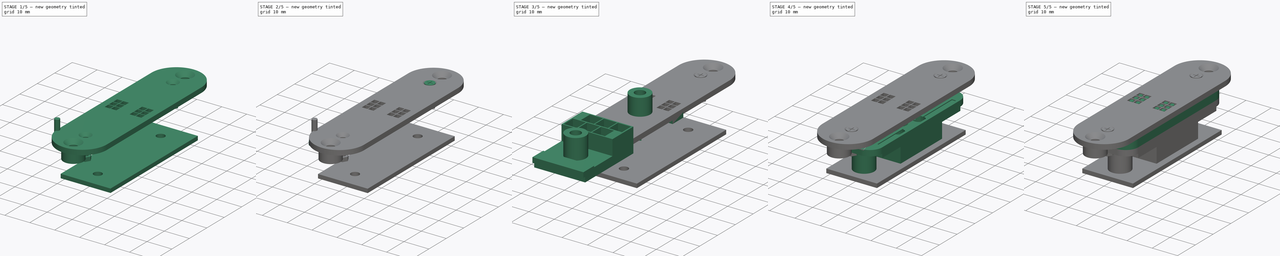
[diagram: build sequence overview — one tinted view per stage of 5, left to right]
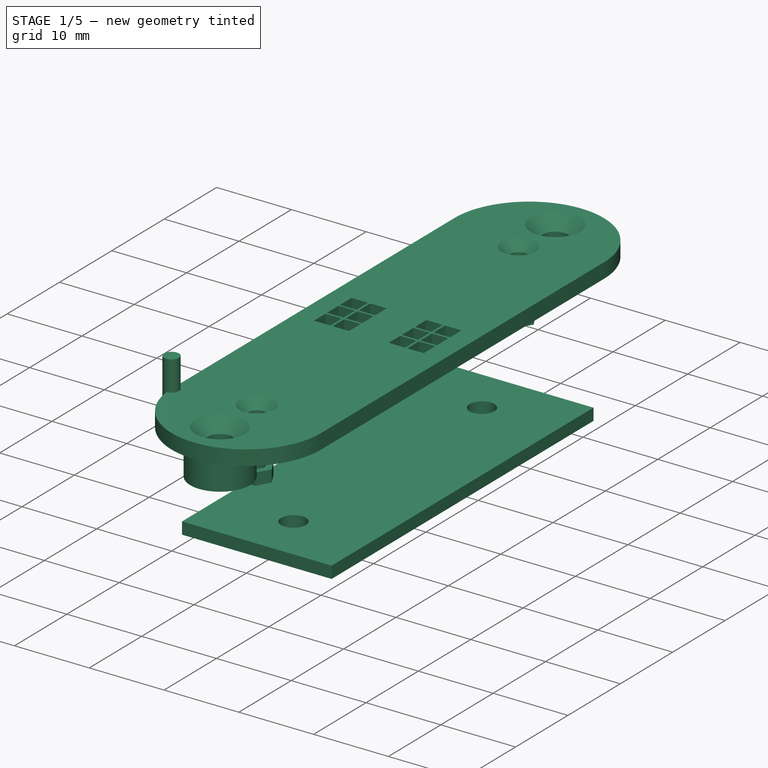
[diagram: stage 1 of 5 — iso view after this stage's code; geometry added in this stage tinted green]
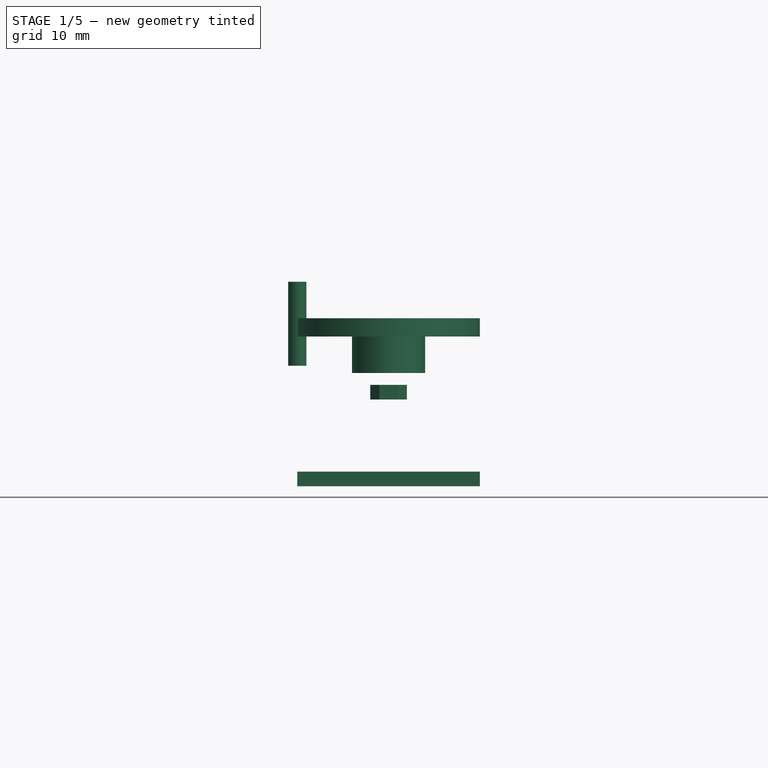
[diagram: stage 1 of 5 — front view after this stage's code; geometry added in this stage tinted green]
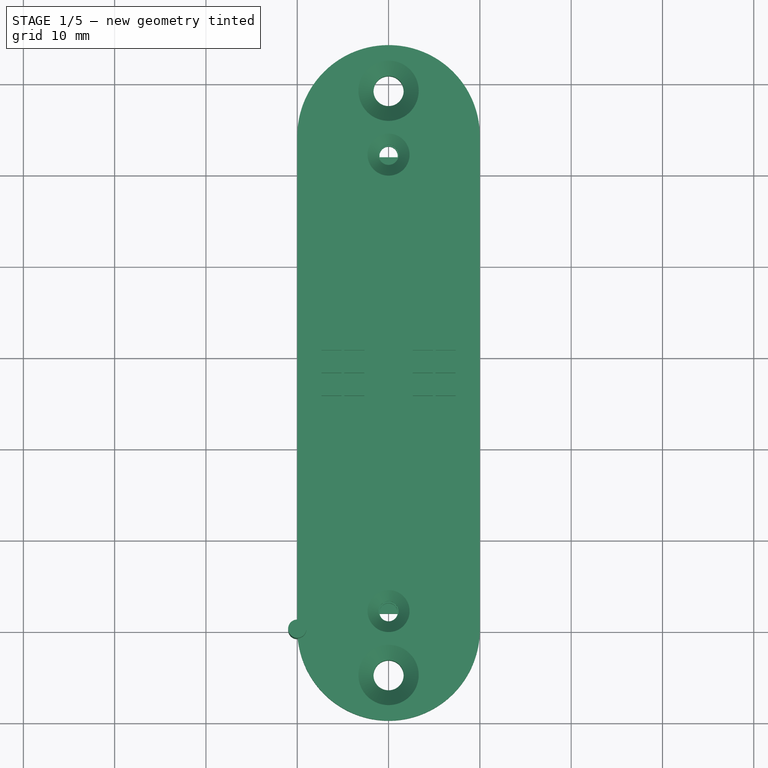
[diagram: stage 1 of 5 — top view after this stage's code; geometry added in this stage tinted green]
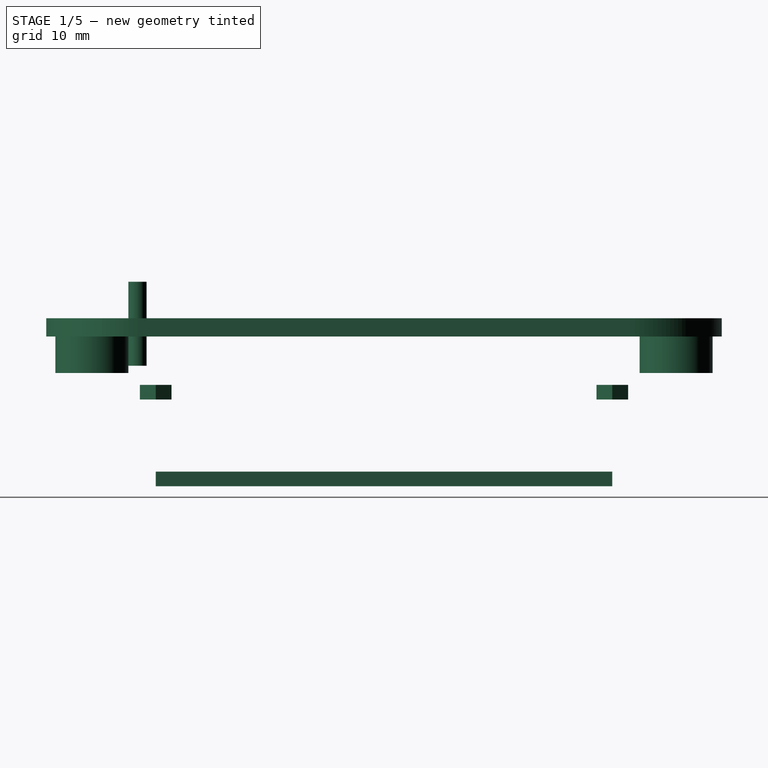
[diagram: stage 1 of 5 — right view after this stage's code; geometry added in this stage tinted green]
FCSTD DOCUMENT  (FreeCAD 0.16R6706 (Git))
Label: ExplodedAssembly
License: All rights reserved
LicenseURL: http://en.wikipedia.org/wiki/All_rights_reserved
objects: Sketcher::SketchObject×20, PartDesign::Pad×20, Part::MultiFuse×12, Part::Cylinder×8, PartDesign::Chamfer×7, PartDesign::Fillet×6, Part::Cut×6, Part::Box×4, App::DocumentObjectGroupPython×1
note: 103 computed .brp shape members not serialized (recipe doc carries the construction recipe); baked Part::Feature solids carry a one-line shape summary decoded from their .brp

FEATURE [Part::Cylinder] Cylinder005  label="Zylinder005"
  Angle = 360
  Height = 9.2
  Placement = pos=(0,0,0.1) rot=(0,0,1;0rad)
  Radius = 1
FEATURE [Sketcher::SketchObject] Sketch026
  sketch-geometry (7):
    g0: LineSegment StartX=0 StartY=2 StartZ=0 EndX=1 EndY=0.267949 EndZ=0
    g1: LineSegment StartX=1 StartY=0.267949 StartZ=0 EndX=3 EndY=0.267949 EndZ=0
    g2: LineSegment StartX=3 StartY=0.267949 StartZ=0 EndX=4 EndY=2 EndZ=0
    g3: LineSegment StartX=4 StartY=2 StartZ=0 EndX=3 EndY=3.73205 EndZ=0
    g4: LineSegment StartX=3 StartY=3.73205 StartZ=0 EndX=1 EndY=3.73205 EndZ=0
    g5: LineSegment StartX=1 StartY=3.73205 StartZ=0 EndX=0 EndY=2 EndZ=0
    g6: Circle [constr] CenterX=2 CenterY=2 CenterZ=0 NormalX=0 NormalY=0 NormalZ=1 Radius=2
  constraints (17):
    c: Coincident(g0,g1)
    c: Coincident(g1,g2)
    c: Coincident(g2,g3)
    c: Coincident(g3,g4)
    c: Coincident(g4,g5)
    c: Coincident(g5,g0)
    c: Equal(g0, g1-g5) x5
    c: PointOnObject(g0,g6)
    c: PointOnObject(g1,g6)
    c: PointOnObject(g2,g6)
    c: PointOnObject(g3,g6)
    c: PointOnObject(g4,g6)
    c: PointOnObject(g5,g6)
    c: Distance(g0,g3) = 4
    c: Horizontal(g1)
    c: DistanceY(g-1,g6) = 2
    c: DistanceX(g-1,g6) = 2
FEATURE [PartDesign::Pad] Pad026
  Length = 1.6
  Length2 = 100
  Sketch = -> Sketch026
  Type = 0
FEATURE [Part::Cylinder] Cylinder006  label="Zylinder006"
  Angle = 360
  Height = 1.6
  Placement = pos=(2,2,0) rot=(0,0,1;0rad)
  Radius = 1
FEATURE [Part::Cut] Cut004  label="BOLT"
  Base = -> Pad026
  Placement = pos=(8,0,-3.6) rot=(0,0,1;0rad)
  Tool = -> Cylinder006
FEATURE [Sketcher::SketchObject] Sketch027
  sketch-geometry (7):
    g0: LineSegment StartX=0 StartY=2 StartZ=0 EndX=1 EndY=0.267949 EndZ=0
    g1: LineSegment StartX=1 StartY=0.267949 StartZ=0 EndX=3 EndY=0.267949 EndZ=0
    g2: LineSegment StartX=3 StartY=0.267949 StartZ=0 EndX=4 EndY=2 EndZ=0
    g3: LineSegment StartX=4 StartY=2 StartZ=0 EndX=3 EndY=3.73205 EndZ=0
    g4: LineSegment StartX=3 StartY=3.73205 StartZ=0 EndX=1 EndY=3.73205 EndZ=0
    g5: LineSegment StartX=1 StartY=3.73205 StartZ=0 EndX=0 EndY=2 EndZ=0
    g6: Circle [constr] CenterX=2 CenterY=2 CenterZ=0 NormalX=0 NormalY=0 NormalZ=1 Radius=2
  constraints (17):
    c: Coincident(g0,g1)
    c: Coincident(g1,g2)
    c: Coincident(g2,g3)
    c: Coincident(g3,g4)
    c: Coincident(g4,g5)
    c: Coincident(g5,g0)
    c: Equal(g0, g1-g5) x5
    c: PointOnObject(g0,g6)
    c: PointOnObject(g1,g6)
    c: PointOnObject(g2,g6)
    c: PointOnObject(g3,g6)
    c: PointOnObject(g4,g6)
    c: PointOnObject(g5,g6)
    c: Distance(g0,g3) = 4
    c: Horizontal(g1)
    c: DistanceY(g-1,g6) = 2
    c: DistanceX(g-1,g6) = 2
FEATURE [PartDesign::Pad] Pad027
  Length = 1.6
  Length2 = 100
  Sketch = -> Sketch027
  Type = 0
FEATURE [Part::Cylinder] Cylinder007  label="Zylinder007"
  Angle = 360
  Height = 1.6
  Placement = pos=(2,2,0) rot=(0,0,1;0rad)
  Radius = 1
FEATURE [Part::Cut] Cut005  label="BOLT2"
  Base = -> Pad027
  Placement = pos=(8,50,-3.6) rot=(0,0,1;0rad)
  Tool = -> Cylinder007
FEATURE [Sketcher::SketchObject] Sketch028
  sketch-geometry (56):
    g0: LineSegment StartX=0 StartY=10 StartZ=0 EndX=0 EndY=64 EndZ=0
    g1: LineSegment StartX=20 StartY=64 StartZ=0 EndX=20 EndY=10 EndZ=0
    g2: ArcOfCircle CenterX=10 CenterY=10 CenterZ=0 NormalX=0 NormalY=0 NormalZ=1 Radius=10 StartAngle=3.14159 EndAngle=6.28319
    g3: ArcOfCircle CenterX=10 CenterY=64 CenterZ=0 NormalX=0 NormalY=0 NormalZ=1 Radius=10 StartAngle=0 EndAngle=3.14159
    g4: LineSegment StartX=2.65 StartY=40.6 StartZ=0 EndX=4.85 EndY=40.6 EndZ=0
    g5: LineSegment StartX=4.85 StartY=40.6 StartZ=0 EndX=4.85 EndY=38.4 EndZ=0
    g6: LineSegment StartX=4.85 StartY=38.4 StartZ=0 EndX=2.65 EndY=38.4 EndZ=0
    g7: LineSegment StartX=2.65 StartY=38.4 StartZ=0 EndX=2.65 EndY=40.6 EndZ=0
    g8: LineSegment StartX=2.65 StartY=38.1 StartZ=0 EndX=4.85 EndY=38.1 EndZ=0
    g9: LineSegment StartX=4.85 StartY=38.1 StartZ=0 EndX=4.85 EndY=35.9 EndZ=0
    g10: LineSegment StartX=4.85 StartY=35.9 StartZ=0 EndX=2.65 EndY=35.9 EndZ=0
    g11: LineSegment StartX=2.65 StartY=35.9 StartZ=0 EndX=2.65 EndY=38.1 EndZ=0
    g12: LineSegment StartX=2.65 StartY=35.6 StartZ=0 EndX=4.85 EndY=35.6 EndZ=0
    g13: LineSegment StartX=4.85 StartY=35.6 StartZ=0 EndX=4.85 EndY=33.4 EndZ=0
    g14: LineSegment StartX=4.85 StartY=33.4 StartZ=0 EndX=2.65 EndY=33.4 EndZ=0
    g15: LineSegment StartX=2.65 StartY=33.4 StartZ=0 EndX=2.65 EndY=35.6 EndZ=0
    g16: LineSegment StartX=7.35 StartY=33.4 StartZ=0 EndX=5.15 EndY=33.4 EndZ=0
    g17: LineSegment StartX=5.15 StartY=33.4 StartZ=0 EndX=5.15 EndY=35.6 EndZ=0
    g18: LineSegment StartX=5.15 StartY=35.6 StartZ=0 EndX=7.35 EndY=35.6 EndZ=0
    g19: LineSegment StartX=7.35 StartY=35.6 StartZ=0 EndX=7.35 EndY=33.4 EndZ=0
    g20: LineSegment StartX=7.35 StartY=35.9 StartZ=0 EndX=5.15 EndY=35.9 EndZ=0
    g21: LineSegment StartX=5.15 StartY=35.9 StartZ=0 EndX=5.15 EndY=38.1 EndZ=0
    g22: LineSegment StartX=5.15 StartY=38.1 StartZ=0 EndX=7.35 EndY=38.1 EndZ=0
    g23: LineSegment StartX=7.35 StartY=38.1 StartZ=0 EndX=7.35 EndY=35.9 EndZ=0
    g24: LineSegment StartX=7.35 StartY=38.4 StartZ=0 EndX=5.15 EndY=38.4 EndZ=0
    g25: LineSegment StartX=5.15 StartY=38.4 StartZ=0 EndX=5.15 EndY=40.6 EndZ=0
    g26: LineSegment StartX=5.15 StartY=40.6 StartZ=0 EndX=7.35 EndY=40.6 EndZ=0
    g27: LineSegment StartX=7.35 StartY=40.6 StartZ=0 EndX=7.35 EndY=38.4 EndZ=0
    g28: LineSegment StartX=12.65 StartY=40.6 StartZ=0 EndX=14.85 EndY=40.6 EndZ=0
    g29: LineSegment StartX=14.85 StartY=40.6 StartZ=0 EndX=14.85 EndY=38.4 EndZ=0
    g30: LineSegment StartX=14.85 StartY=38.4 StartZ=0 EndX=12.65 EndY=38.4 EndZ=0
    g31: LineSegment StartX=12.65 StartY=38.4 StartZ=0 EndX=12.65 EndY=40.6 EndZ=0
    g32: LineSegment StartX=12.65 StartY=38.1 StartZ=0 EndX=14.85 EndY=38.1 EndZ=0
    g33: LineSegment StartX=14.85 StartY=38.1 StartZ=0 EndX=14.85 EndY=35.9 EndZ=0
    g34: LineSegment StartX=14.85 StartY=35.9 StartZ=0 EndX=12.65 EndY=35.9 EndZ=0
    g35: LineSegment StartX=12.65 StartY=35.9 StartZ=0 EndX=12.65 EndY=38.1 EndZ=0
    g36: LineSegment StartX=12.65 StartY=35.6 StartZ=0 EndX=14.85 EndY=35.6 EndZ=0
    g37: LineSegment StartX=14.85 StartY=35.6 StartZ=0 EndX=14.85 EndY=33.4 EndZ=0
    g38: LineSegment StartX=14.85 StartY=33.4 StartZ=0 EndX=12.65 EndY=33.4 EndZ=0
    g39: LineSegment StartX=12.65 StartY=33.4 StartZ=0 EndX=12.65 EndY=35.6 EndZ=0
    g40: LineSegment StartX=17.35 StartY=33.4 StartZ=0 EndX=15.15 EndY=33.4 EndZ=0
    g41: LineSegment StartX=15.15 StartY=33.4 StartZ=0 EndX=15.15 EndY=35.6 EndZ=0
    g42: LineSegment StartX=15.15 StartY=35.6 StartZ=0 EndX=17.35 EndY=35.6 EndZ=0
    g43: LineSegment StartX=17.35 StartY=35.6 StartZ=0 EndX=17.35 EndY=33.4 EndZ=0
    g44: LineSegment StartX=15.15 StartY=35.9 StartZ=0 EndX=17.35 EndY=35.9 EndZ=0
    g45: LineSegment StartX=17.35 StartY=35.9 StartZ=0 EndX=17.35 EndY=38.1 EndZ=0
    g46: LineSegment StartX=17.35 StartY=38.1 StartZ=0 EndX=15.15 EndY=38.1 EndZ=0
    g47: LineSegment StartX=15.15 StartY=38.1 StartZ=0 EndX=15.15 EndY=35.9 EndZ=0
    g48: LineSegment StartX=17.35 StartY=38.4 StartZ=0 EndX=15.15 EndY=38.4 EndZ=0
    g49: LineSegment StartX=15.15 StartY=38.4 StartZ=0 EndX=15.15 EndY=40.6 EndZ=0
    g50: LineSegment StartX=15.15 StartY=40.6 StartZ=0 EndX=17.35 EndY=40.6 EndZ=0
    g51: LineSegment StartX=17.35 StartY=40.6 StartZ=0 EndX=17.35 EndY=38.4 EndZ=0
    g52: Circle CenterX=10 CenterY=69 CenterZ=0 NormalX=0 NormalY=0 NormalZ=1 Radius=1.65
    g53: Circle CenterX=10 CenterY=5 CenterZ=0 NormalX=0 NormalY=0 NormalZ=1 Radius=1.65
    g54: Circle CenterX=10 CenterY=62 CenterZ=0 NormalX=0 NormalY=0 NormalZ=1 Radius=1.1
    g55: Circle CenterX=10 CenterY=12 CenterZ=0 NormalX=0 NormalY=0 NormalZ=1 Radius=1.1
  constraints (170):
    c: Vertical(g0)
    c: Vertical(g1)
    c: DistanceX(g0,g1) = 20
    c: DistanceX(g-1,g0) = 0
    c: DistanceY(g1,g0) = 0
    c: DistanceY(g0,g0) = 54
    c: DistanceY(g1,g1) = 54
    c: DistanceY(g-1,g0) = 10
    c: Coincident(g2,g0)
    c: Coincident(g2,g1)
    c: DistanceY(g2,g0) = 0
    c: Coincident(g3,g0)
    c: Coincident(g3,g1)
    c: DistanceY(g0,g3) = 0
    c: Coincident(g4,g5)
    c: Coincident(g5,g6)
    c: Coincident(g6,g7)
    c: Coincident(g7,g4)
    c: Horizontal(g4)
    c: Horizontal(g6)
    c: Vertical(g5)
    c: Vertical(g7)
    c: Coincident(g8,g9)
    c: Coincident(g9,g10)
    c: Coincident(g10,g11)
    c: Coincident(g11,g8)
    c: Horizontal(g8)
    c: Horizontal(g10)
    c: Vertical(g9)
    c: Vertical(g11)
    c: Coincident(g12,g13)
    c: Coincident(g13,g14)
    c: Coincident(g14,g15)
    c: Coincident(g15,g12)
    c: Horizontal(g12)
    c: Horizontal(g14)
    c: Vertical(g13)
    c: Vertical(g15)
    c: Coincident(g16,g17)
    c: Coincident(g17,g18)
    c: Coincident(g18,g19)
    c: Coincident(g19,g16)
    c: Horizontal(g16)
    c: Horizontal(g18)
    c: Vertical(g17)
    c: Vertical(g19)
    c: Coincident(g20,g21)
    c: Coincident(g21,g22)
    c: Coincident(g22,g23)
    c: Coincident(g23,g20)
    c: Horizontal(g20)
    c: Horizontal(g22)
    c: Vertical(g21)
    c: Vertical(g23)
    c: Coincident(g24,g25)
    c: Coincident(g25,g26)
    c: Coincident(g26,g27)
    c: Coincident(g27,g24)
    c: Horizontal(g24)
    c: Horizontal(g26)
    c: Vertical(g25)
    c: Vertical(g27)
    c: Coincident(g28,g29)
    c: Coincident(g29,g30)
    c: Coincident(g30,g31)
    c: Coincident(g31,g28)
    c: Horizontal(g28)
    c: Horizontal(g30)
    c: Vertical(g29)
    c: Vertical(g31)
    c: Coincident(g32,g33)
    c: Coincident(g33,g34)
    c: Coincident(g34,g35)
    c: Coincident(g35,g32)
    c: Horizontal(g32)
    c: Horizontal(g34)
    c: Vertical(g33)
    c: Vertical(g35)
    c: Coincident(g36,g37)
    c: Coincident(g37,g38)
    c: Coincident(g38,g39)
    c: Coincident(g39,g36)
    c: Horizontal(g36)
    c: Horizontal(g38)
    c: Vertical(g37)
    c: Vertical(g39)
    c: Coincident(g40,g41)
    c: Coincident(g41,g42)
    c: Coincident(g42,g43)
    c: Coincident(g43,g40)
    c: Horizontal(g40)
    c: Horizontal(g42)
    c: Vertical(g41)
    c: Vertical(g43)
    c: Coincident(g44,g45)
    c: Coincident(g45,g46)
    c: Coincident(g46,g47)
    c: Coincident(g47,g44)
    c: Horizontal(g44)
    c: Horizontal(g46)
    c: Vertical(g45)
    c: Vertical(g47)
    c: Coincident(g48,g49)
    c: Coincident(g49,g50)
    c: Coincident(g50,g51)
    c: Coincident(g51,g48)
    c: Horizontal(g48)
    c: Horizontal(g50)
    c: Vertical(g49)
    c: Vertical(g51)
    c: Radius(g52) = 1.65
    c: DistanceX(g52,g3) = 0
    c: DistanceY(g0,g52) = 5
    c: Radius(g53) = 1.65
    c: DistanceX(g53,g2) = 0
    c: DistanceY(g53,g0) = 5
    c: DistanceX(g4,g4) = 2.2
    c: DistanceX(g25,g26) = 2.2
    c: DistanceY(g6,g4) = 2.2
    c: DistanceX(g8,g8) = 2.2
    c: DistanceY(g10,g8) = 2.2
    c: DistanceY(g24,g26) = 2.2
    c: DistanceY(g4,g25) = 0
    c: DistanceY(g21,g8) = 0
    c: DistanceX(g6,g8) = 0
    c: DistanceX(g21,g22) = 2.2
    c: DistanceY(g20,g21) = 2.2
    c: DistanceX(g12,g12) = 2.2
    c: DistanceY(g14,g12) = 2.2
    c: DistanceX(g12,g10) = 0
    c: DistanceX(g17,g18) = 2.2
    c: DistanceY(g16,g17) = 2.2
    c: DistanceX(g20,g17) = 0
    c: DistanceY(g17,g12) = 0
    c: DistanceX(g24,g21) = 0
    c: DistanceY(g-1,g10) = 35.9
    c: DistanceY(g12,g10) = 0.3
    c: DistanceX(g8,g21) = 0.3
    c: DistanceY(g8,g6) = 0.3
    c: DistanceX(g28,g28) = 2.2
    c: DistanceY(g30,g28) = 2.2
    c: DistanceY(g34,g32) = 2.2
    c: DistanceX(g30,g32) = 0
    c: DistanceX(g34,g36) = 0
    c: DistanceX(g32,g29) = 0
    c: DistanceY(g32,g30) = 0.3
    c: DistanceY(g36,g34) = 0.3
    c: DistanceY(g38,g36) = 2.2
    c: DistanceX(g36,g33) = 0
    c: DistanceY(g28,g49) = 0
    c: DistanceX(g28,g49) = 0.3
    c: DistanceX(g48,g46) = 0
    c: DistanceX(g44,g41) = 0
    c: DistanceX(g49,g50) = 2.2
    c: DistanceY(g29,g48) = 0
    c: DistanceY(g46,g32) = 0
    c: DistanceX(g45,g48) = 0
    c: DistanceY(g44,g33) = 0
    c: DistanceY(g41,g36) = 0
    c: DistanceX(g42,g44) = 0
    c: DistanceY(g40,g37) = 0
    c: DistanceY(g4,g28) = 0
    c: DistanceX(g-1,g10) = 2.65
    c: DistanceX(g50,g1) = 2.65
    c: Radius(g55) = 1.1
    c: Radius(g54) = 1.1
    c: DistanceX(g-1,g54) = 10
    c: DistanceX(g-1,g55) = 10
    c: DistanceY(g-1,g55) = 12
    c: DistanceY(g-1,g54) = 62
FEATURE [PartDesign::Pad] Pad028
  Length = 2
  Length2 = 100
  Sketch = -> Sketch028
  Type = 0
FEATURE [Sketcher::SketchObject] Sketch029
  Placement = pos=(0,0,2) rot=(0,0,1;0rad)
  sketch-geometry (4):
    g0: Circle CenterX=10 CenterY=69 CenterZ=0 NormalX=0 NormalY=0 NormalZ=1 Radius=4
    g1: Circle CenterX=10 CenterY=69 CenterZ=0 NormalX=0 NormalY=0 NormalZ=1 Radius=1.65
    g2: Circle CenterX=10 CenterY=5 CenterZ=0 NormalX=0 NormalY=0 NormalZ=1 Radius=4
    g3: Circle CenterX=10 CenterY=5 CenterZ=0 NormalX=0 NormalY=0 NormalZ=1 Radius=1.65
  constraints (10):
    c: Coincident(g1,g0)
    c: Coincident(g3,g2)
    c: Radius(g3) = 1.65
    c: DistanceX(g-1,g2) = 10
    c: DistanceY(g-1,g2) = 5
    c: Radius(g2) = 4
    c: Radius(g1) = 1.65
    c: Radius(g0) = 4
    c: DistanceX(g-1,g0) = 10
    c: DistanceY(g-1,g0) = 69
FEATURE [PartDesign::Pad] Pad029
  Length = 4
  Length2 = 100
  Placement = pos=(0,0,2) rot=(0,0,1;0rad)
  Sketch = -> Sketch029
  Type = 0
FEATURE [PartDesign::Chamfer] Chamfer007
  Base = -> Pad028 [Edge14,Edge17]
  Size = 1.65
FEATURE [Part::MultiFuse] Fusion015  label="TopPlate"
  Placement = pos=(20,-10,5.3) rot=(0,1,0;3.14159rad)
  Shapes = -> [Pad029,Chamfer007]
FEATURE [PartDesign::Chamfer] Chamfer001  label="TopPlate001"
  Base = -> Fusion015 [Edge123,Edge141]
  Placement = pos=(20,-10,5.3) rot=(0,1,0;3.14159rad)
  Size = 1.2
FEATURE [Sketcher::SketchObject] Sketch030
  Placement = pos=(0,2,-13.1) rot=(0,0,1;0rad)
  sketch-geometry (6):
    g0: LineSegment StartX=0 StartY=0 StartZ=0 EndX=20 EndY=0 EndZ=0
    g1: LineSegment StartX=20 StartY=0 StartZ=0 EndX=20 EndY=50 EndZ=0
    g2: LineSegment StartX=20 StartY=50 StartZ=0 EndX=0 EndY=50 EndZ=0
    g3: LineSegment StartX=0 StartY=50 StartZ=0 EndX=0 EndY=0 EndZ=0
    g4: Circle CenterX=10 CenterY=43 CenterZ=0 NormalX=0 NormalY=0 NormalZ=1 Radius=1.65
    g5: Circle CenterX=10 CenterY=7 CenterZ=0 NormalX=0 NormalY=0 NormalZ=1 Radius=1.65
  constraints (17):
    c: Coincident(g0,g1)
    c: Coincident(g1,g2)
    c: Coincident(g2,g3)
    c: Coincident(g3,g0)
    c: Horizontal(g0)
    c: Horizontal(g2)
    c: Vertical(g1)
    c: Vertical(g3)
    c: Coincident(g0,g-1)
    c: DistanceY(g-1,g2) = 50
    c: DistanceX(g2,g1) = 20
    c: Radius(g5) = 1.65
    c: Radius(g4) = 1.65
    c: DistanceX(g-1,g5) = 10
    c: DistanceX(g-1,g4) = 10
    c: DistanceY(g-1,g5) = 7
    c: DistanceY(g4,g2) = 7
FEATURE [PartDesign::Pad] Pad030  label="PCB"
  Length = 1.6
  Length2 = 100
  Placement = pos=(0,2,-13.1) rot=(0,0,1;0rad)
  Sketch = -> Sketch030
  Type = 0
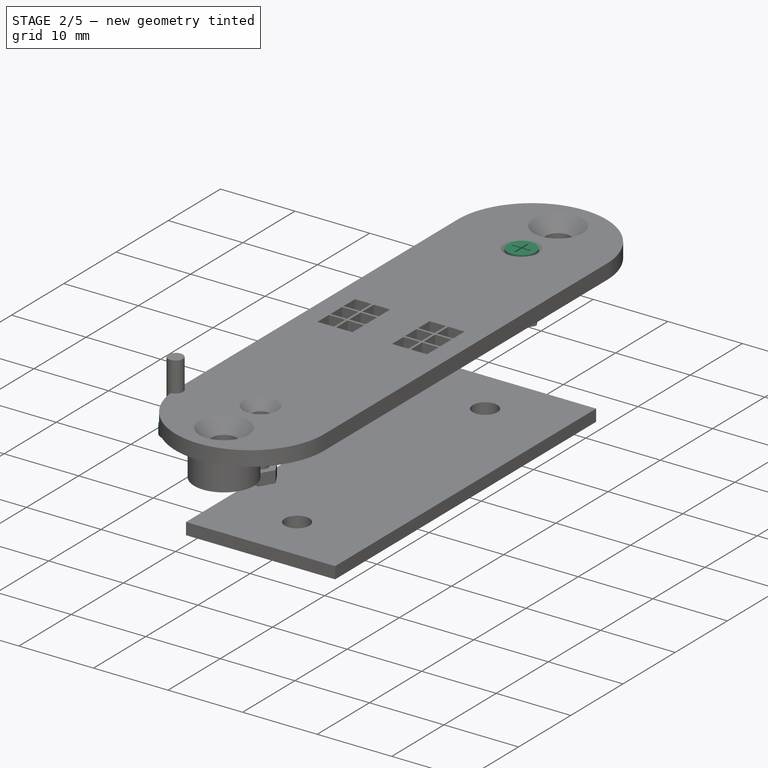
[diagram: stage 2 of 5 — iso view after this stage's code; geometry added in this stage tinted green]
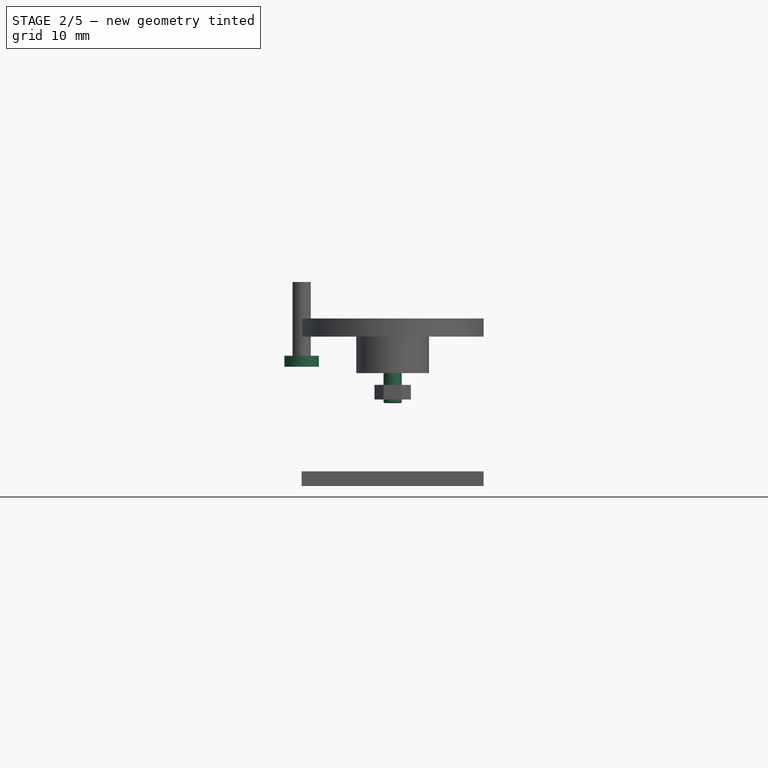
[diagram: stage 2 of 5 — front view after this stage's code; geometry added in this stage tinted green]
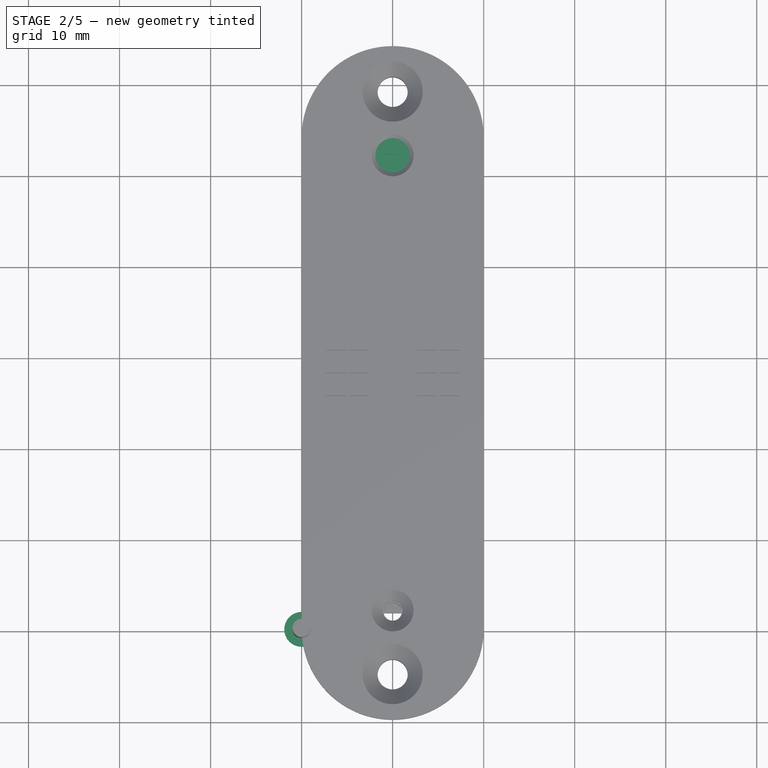
[diagram: stage 2 of 5 — top view after this stage's code; geometry added in this stage tinted green]
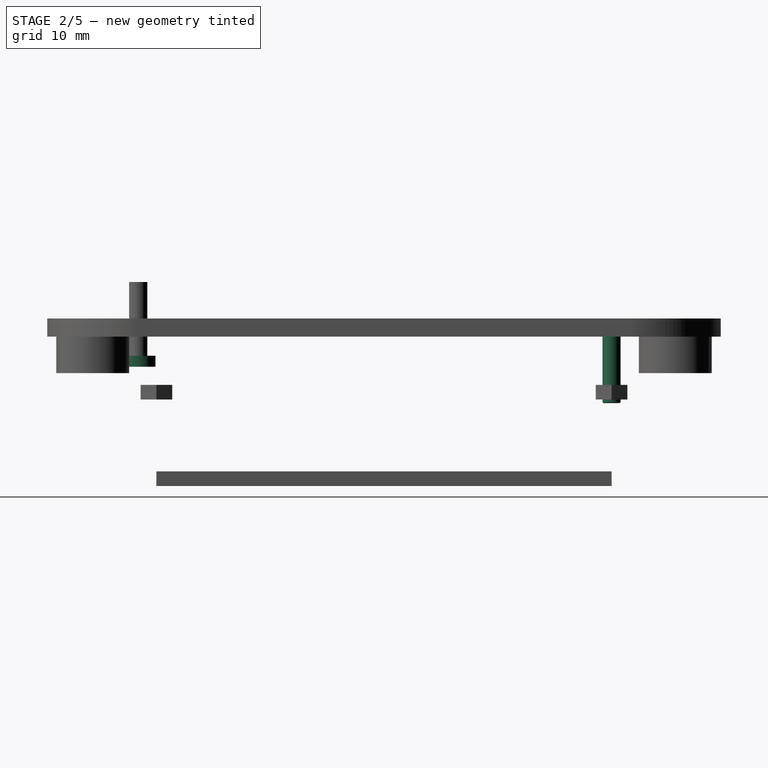
[diagram: stage 2 of 5 — right view after this stage's code; geometry added in this stage tinted green]
FEATURE [App::DocumentObjectGroupPython] ExplodedAssembly  # scripted group (container) (typed FeaturePython)
  AnimationStep = 0
  CurrentTrajectory = 0
  InAnimation = false
  RemoveAllTrajectories = false
  ResetAnimation = false
FEATURE [Part::Cylinder] Cylinder002  label="Zylinder002"
  Angle = 360
  Height = 1.2
  Radius = 1.9
FEATURE [Part::Cylinder] Cylinder003  label="Zylinder003"
  Angle = 360
  Height = 9.2
  Placement = pos=(0,0,0.1) rot=(0,0,1;0rad)
  Radius = 1
FEATURE [Part::Box] Box001  label="Würfel001"
  Height = 0.5
  Length = 2.5
  Placement = pos=(-1.25,-0.1,0) rot=(0,0,1;0rad)
  Width = 0.2
FEATURE [Part::MultiFuse] Fusion012
  Shapes = -> [Cylinder003,Cylinder002]
FEATURE [Part::Cylinder] Cylinder004  label="Zylinder004"
  Angle = 360
  Height = 1.2
  Radius = 1.9
FEATURE [Part::Box] Box002  label="Würfel002"
  Height = 0.5
  Length = 0.2
  Placement = pos=(-0.1,-1.25,0) rot=(0,0,1;0rad)
  Width = 2.5
FEATURE [Part::Box] Box003  label="Würfel003"
  Height = 0.5
  Length = 2.5
  Placement = pos=(-1.25,-0.1,0) rot=(0,0,1;0rad)
  Width = 0.2
FEATURE [Part::MultiFuse] Fusion013
  Shapes = -> [Box003,Box002]
FEATURE [Part::MultiFuse] Fusion014
  Shapes = -> [Cylinder005,Cylinder004]
FEATURE [Part::Cut] Cut003
  Base = -> Fusion014
  Placement = pos=(10,52,5.3) rot=(0,1,0;3.14159rad)
  Tool = -> Fusion013
FEATURE [PartDesign::Chamfer] Chamfer005
  Base = -> Cut003 [Edge4]
  Placement = pos=(10,52,5.3) rot=(0,1,0;3.14159rad)
  Size = 0.8999
FEATURE [PartDesign::Chamfer] Chamfer006  label="SCREW2"
  Base = -> Chamfer005 [Edge6]
  Placement = pos=(10,52,5.3) rot=(0,1,0;3.14159rad)
  Size = 0.1
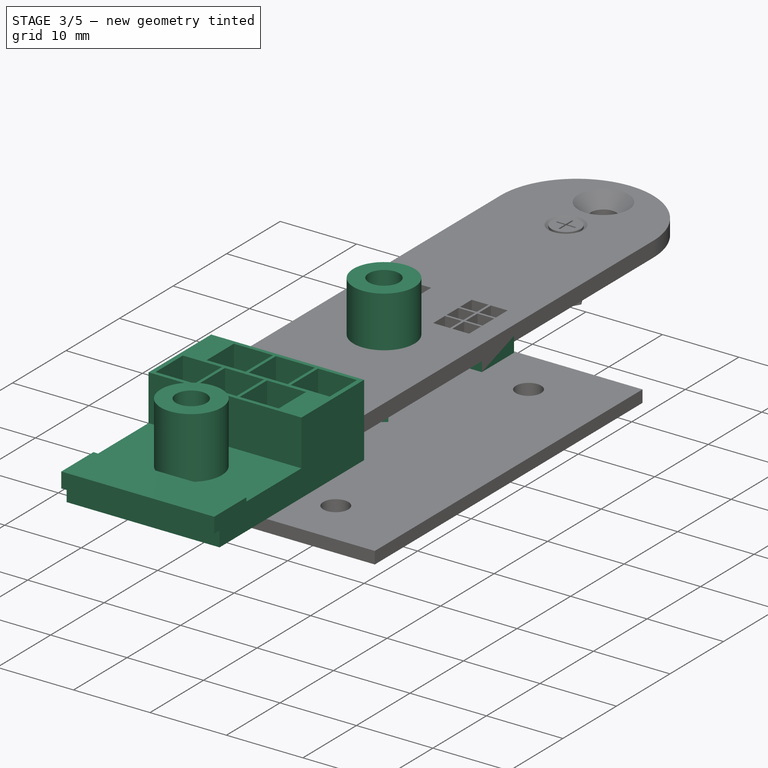
[diagram: stage 3 of 5 — iso view after this stage's code; geometry added in this stage tinted green]
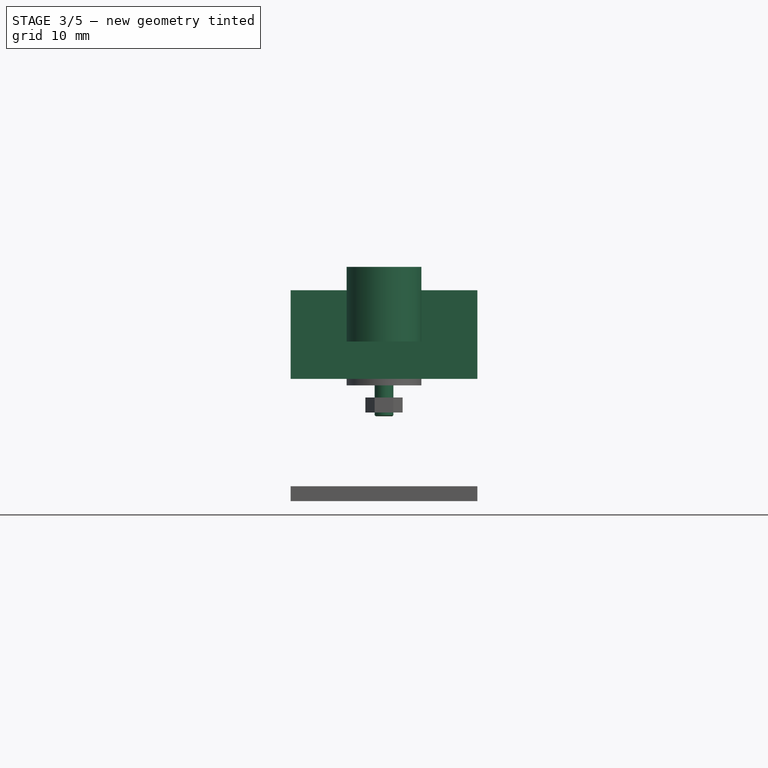
[diagram: stage 3 of 5 — front view after this stage's code; geometry added in this stage tinted green]
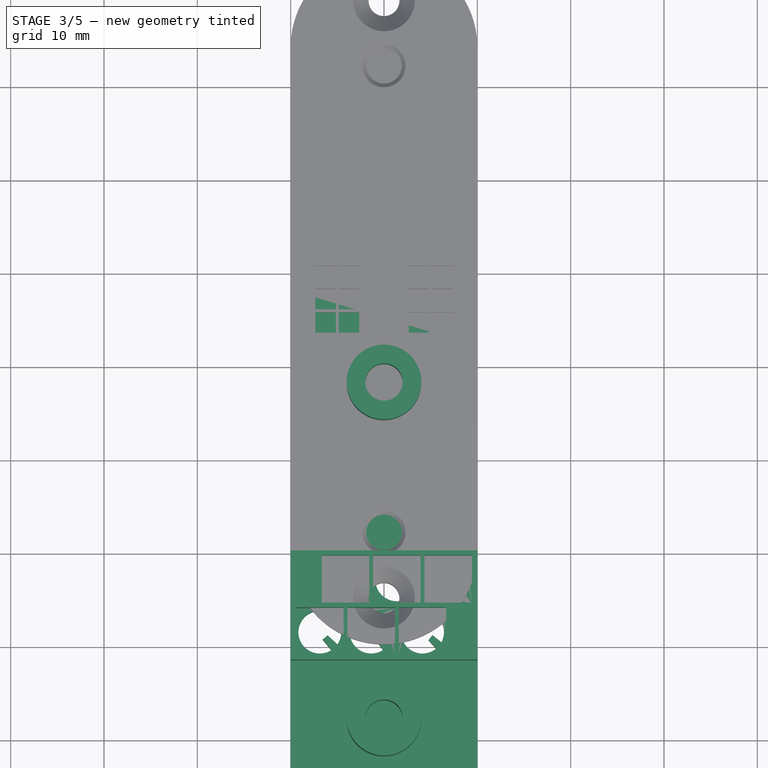
[diagram: stage 3 of 5 — top view after this stage's code; geometry added in this stage tinted green]
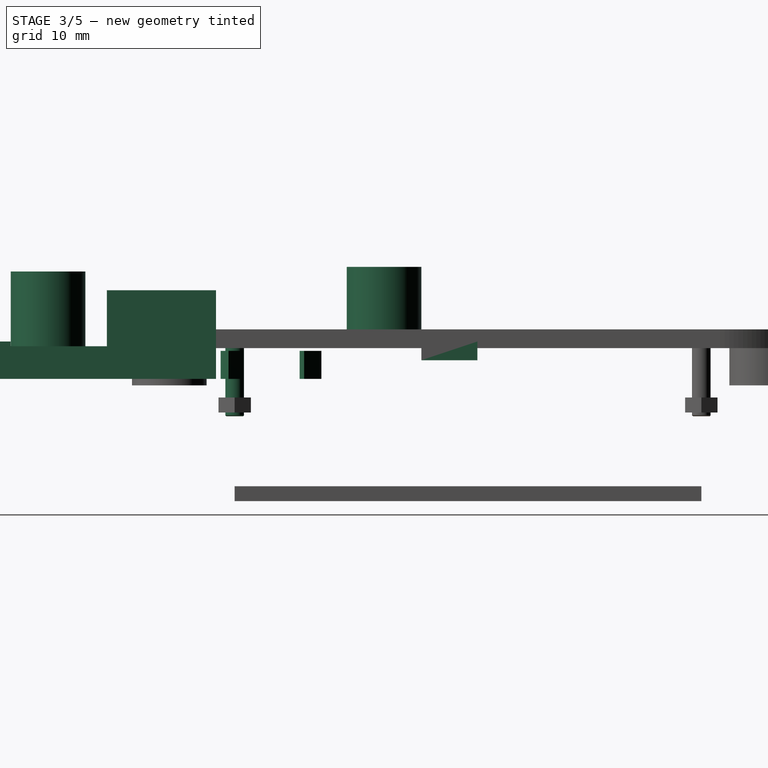
[diagram: stage 3 of 5 — right view after this stage's code; geometry added in this stage tinted green]
FEATURE [Sketcher::SketchObject] Sketch023
  Placement = pos=(0,0,3.5) rot=(0,0,1;0rad)
  sketch-geometry (2):
    g0: Circle CenterX=10 CenterY=18 CenterZ=0 NormalX=0 NormalY=0 NormalZ=1 Radius=2
    g1: Circle CenterX=10 CenterY=18 CenterZ=0 NormalX=0 NormalY=0 NormalZ=1 Radius=4
  constraints (5):
    c: Radius(g0) = 2
    c: Coincident(g1,g0)
    c: Radius(g1) = 4
    c: DistanceX(g-1,g0) = 10
    c: DistanceY(g-1,g0) = 18
FEATURE [PartDesign::Pad] Pad023
  Length = 8.5
  Length2 = 100
  Placement = pos=(0,0,3.5) rot=(0,0,1;0rad)
  Sketch = -> Sketch023
  Type = 0
FEATURE [Sketcher::SketchObject] Sketch024
  sketch-geometry (24):
    g0: LineSegment StartX=3.14451 StartY=10.2964 StartZ=0 EndX=4.81223 EndY=8.96219 EndZ=0
    g1: LineSegment StartX=4.81223 StartY=8.96219 StartZ=0 EndX=5.22976 EndY=9.5068 EndZ=0
    g2: LineSegment StartX=5.22976 StartY=9.5068 StartZ=0 EndX=3.84864 EndY=11.0276 EndZ=0
    g3: LineSegment StartX=3.84864 StartY=11.0276 StartZ=0 EndX=3.14451 EndY=10.2964 EndZ=0
    g4: LineSegment StartX=8.80602 StartY=10.5234 StartZ=0 EndX=10.3483 EndY=9.13186 EndZ=0
    g5: LineSegment StartX=10.3483 StartY=9.13186 StartZ=0 EndX=10.8168 EndY=9.6104 EndZ=0
    g6: LineSegment StartX=10.8168 StartY=9.6104 StartZ=0 EndX=9.51401 EndY=11.2859 EndZ=0
    g7: LineSegment StartX=9.51401 StartY=11.2859 StartZ=0 EndX=8.80602 EndY=10.5234 EndZ=0
    g8: LineSegment StartX=14.3792 StartY=10.5416 StartZ=0 EndX=16.0312 EndY=8.98035 EndZ=0
    g9: LineSegment StartX=16.0312 StartY=8.98035 StartZ=0 EndX=16.5758 EndY=9.43419 EndZ=0
    g10: LineSegment StartX=16.5758 StartY=9.43419 StartZ=0 EndX=15.1416 EndY=11.1769 EndZ=0
    g11: LineSegment StartX=15.1416 StartY=11.1769 StartZ=0 EndX=14.3792 EndY=10.5416 EndZ=0
    g12: LineSegment StartX=3.6714 StartY=2.07084 StartZ=0 EndX=4.91308 EndY=0.518744 EndZ=0
    g13: LineSegment StartX=4.91308 StartY=0.518744 StartZ=0 EndX=5.68913 EndY=1.22828 EndZ=0
    g14: LineSegment StartX=5.68913 StartY=1.22828 StartZ=0 EndX=4.18138 EndY=2.60299 EndZ=0
    g15: LineSegment StartX=4.18138 StartY=2.60299 StartZ=0 EndX=3.6714 EndY=2.07084 EndZ=0
    g16: LineSegment StartX=8.9042 StartY=2.18171 StartZ=0 EndX=10.3898 EndY=0.496571 EndZ=0
    g17: LineSegment StartX=10.3898 StartY=0.496571 StartZ=0 EndX=11.1215 EndY=1.25045 EndZ=0
    g18: LineSegment StartX=11.1215 StartY=1.25045 StartZ=0 EndX=9.54721 EndY=2.66951 EndZ=0
    g19: LineSegment StartX=9.54721 StartY=2.66951 StartZ=0 EndX=8.9042 EndY=2.18171 EndZ=0
    g20: LineSegment StartX=14.5583 StartY=2.18171 StartZ=0 EndX=15.6669 EndY=0.518744 EndZ=0
    g21: LineSegment StartX=15.6669 StartY=0.518744 StartZ=0 EndX=16.5538 EndY=1.33914 EndZ=0
    g22: LineSegment StartX=16.5538 StartY=1.33914 StartZ=0 EndX=15.0904 EndY=2.60299 EndZ=0
    g23: LineSegment StartX=15.0904 StartY=2.60299 StartZ=0 EndX=14.5583 EndY=2.18171 EndZ=0
  constraints (24):
    c: Coincident(g0,g1)
    c: Coincident(g1,g2)
    c: Coincident(g2,g3)
    c: Coincident(g3,g0)
    c: Coincident(g4,g5)
    c: Coincident(g5,g6)
    c: Coincident(g6,g7)
    c: Coincident(g7,g4)
    c: Coincident(g8,g9)
    c: Coincident(g9,g10)
    c: Coincident(g10,g11)
    c: Coincident(g11,g8)
    c: Coincident(g12,g13)
    c: Coincident(g13,g14)
    c: Coincident(g14,g15)
    c: Coincident(g15,g12)
    c: Coincident(g16,g17)
    c: Coincident(g17,g18)
    c: Coincident(g18,g19)
    c: Coincident(g19,g16)
    c: Coincident(g20,g21)
    c: Coincident(g21,g22)
    c: Coincident(g22,g23)
    c: Coincident(g23,g20)
FEATURE [PartDesign::Pad] Pad024
  Length = 3
  Length2 = 100
  Sketch = -> Sketch024
  Type = 0
FEATURE [Sketcher::SketchObject] Sketch025
  sketch-geometry (11):
    g0: LineSegment StartX=0 StartY=0 StartZ=0 EndX=20 EndY=0 EndZ=0
    g1: LineSegment StartX=20 StartY=0 StartZ=0 EndX=20 EndY=27 EndZ=0
    g2: LineSegment StartX=20 StartY=27 StartZ=0 EndX=0 EndY=27 EndZ=0
    g3: LineSegment StartX=0 StartY=27 StartZ=0 EndX=0 EndY=0 EndZ=0
    g4: Circle CenterX=5.875 CenterY=8.65 CenterZ=0 NormalX=0 NormalY=0 NormalZ=1 Radius=2.3
    g5: Circle CenterX=11.375 CenterY=8.65 CenterZ=0 NormalX=0 NormalY=0 NormalZ=1 Radius=2.3
    g6: Circle CenterX=16.875 CenterY=8.65 CenterZ=0 NormalX=0 NormalY=0 NormalZ=1 Radius=2.3
    g7: Circle CenterX=14.125 CenterY=3.05 CenterZ=0 NormalX=0 NormalY=0 NormalZ=1 Radius=2.3
    g8: Circle CenterX=8.625 CenterY=3.05 CenterZ=0 NormalX=0 NormalY=0 NormalZ=1 Radius=2.3
    g9: Circle CenterX=3.125 CenterY=3.05 CenterZ=0 NormalX=0 NormalY=0 NormalZ=1 Radius=2.3
    g10: Circle CenterX=10 CenterY=25 CenterZ=0 NormalX=0 NormalY=0 NormalZ=1 Radius=1.1
  constraints (31):
    c: Coincident(g0,g1)
    c: Coincident(g1,g2)
    c: Coincident(g2,g3)
    c: Coincident(g3,g0)
    c: Horizontal(g0)
    c: Horizontal(g2)
    c: Vertical(g1)
    c: Vertical(g3)
    c: Coincident(g0,g-1)
    c: DistanceX(g2,g1) = 20
    c: DistanceY(g0,g1) = 27
    c: Radius(g9) = 2.3
    c: Radius(g8) = 2.3
    c: Radius(g7) = 2.3
    c: Radius(g6) = 2.3
    c: Radius(g5) = 2.3
    c: Radius(g4) = 2.3
    c: DistanceY(g-1,g4) = 8.65
    c: DistanceY(g-1,g5) = 8.65
    c: DistanceY(g-1,g6) = 8.65
    c: DistanceY(g-1,g9) = 3.05
    c: DistanceX(g-1,g9) = 3.125
    c: DistanceY(g-1,g8) = 3.05
    c: DistanceY(g-1,g7) = 3.05
    c: DistanceX(g9,g8) = 5.5
    c: DistanceX(g8,g7) = 5.5
    c: DistanceX(g5,g6) = 5.5
    c: DistanceX(g4,g5) = 5.5
    c: Radius(g10) = 1.1
    c: DistanceX(g-1,g10) = 10
    c: DistanceX(g9,g4) = 2.75
FEATURE [Sketcher::SketchObject] Sketch010
  Placement = pos=(0,0,3.5) rot=(0,0,1;0rad)
  sketch-geometry (28):
    g0: LineSegment StartX=0 StartY=0 StartZ=0 EndX=20 EndY=0 EndZ=0
    g1: LineSegment StartX=20 StartY=0 StartZ=0 EndX=20 EndY=11.7 EndZ=0
    g2: LineSegment StartX=20 StartY=11.7 StartZ=0 EndX=0 EndY=11.7 EndZ=0
    g3: LineSegment StartX=0 StartY=11.7 StartZ=0 EndX=0 EndY=0 EndZ=0
    g4: LineSegment StartX=3.325 StartY=11.2 StartZ=0 EndX=8.425 EndY=11.2 EndZ=0
    g5: LineSegment StartX=8.425 StartY=11.2 StartZ=0 EndX=8.425 EndY=6.1 EndZ=0
    g6: LineSegment StartX=8.425 StartY=6.1 StartZ=0 EndX=3.325 EndY=6.1 EndZ=0
    g7: LineSegment StartX=3.325 StartY=6.1 StartZ=0 EndX=3.325 EndY=11.2 EndZ=0
    g8: LineSegment StartX=8.825 StartY=11.2 StartZ=0 EndX=13.925 EndY=11.2 EndZ=0
    g9: LineSegment StartX=13.925 StartY=11.2 StartZ=0 EndX=13.925 EndY=6.1 EndZ=0
    g10: LineSegment StartX=13.925 StartY=6.1 StartZ=0 EndX=8.825 EndY=6.1 EndZ=0
    g11: LineSegment StartX=8.825 StartY=6.1 StartZ=0 EndX=8.825 EndY=11.2 EndZ=0
    g12: LineSegment StartX=14.325 StartY=11.2 StartZ=0 EndX=19.425 EndY=11.2 EndZ=0
    g13: LineSegment StartX=19.425 StartY=11.2 StartZ=0 EndX=19.425 EndY=6.1 EndZ=0
    g14: LineSegment StartX=19.425 StartY=6.1 StartZ=0 EndX=14.325 EndY=6.1 EndZ=0
    g15: LineSegment StartX=14.325 StartY=6.1 StartZ=0 EndX=14.325 EndY=11.2 EndZ=0
    g16: LineSegment StartX=5.675 StartY=5.6 StartZ=0 EndX=0.575 EndY=5.6 EndZ=0
    g17: LineSegment StartX=0.575 StartY=5.6 StartZ=0 EndX=0.575 EndY=0.5 EndZ=0
    g18: LineSegment StartX=0.575 StartY=0.5 StartZ=0 EndX=5.675 EndY=0.5 EndZ=0
    g19: LineSegment StartX=5.675 StartY=0.5 StartZ=0 EndX=5.675 EndY=5.6 EndZ=0
    g20: LineSegment StartX=6.075 StartY=5.6 StartZ=0 EndX=11.175 EndY=5.6 EndZ=0
    g21: LineSegment StartX=11.175 StartY=5.6 StartZ=0 EndX=11.175 EndY=0.5 EndZ=0
    g22: LineSegment StartX=11.175 StartY=0.5 StartZ=0 EndX=6.075 EndY=0.5 EndZ=0
    g23: LineSegment StartX=6.075 StartY=0.5 StartZ=0 EndX=6.075 EndY=5.6 EndZ=0
    g24: LineSegment StartX=11.575 StartY=5.6 StartZ=0 EndX=16.675 EndY=5.6 EndZ=0
    g25: LineSegment StartX=16.675 StartY=5.6 StartZ=0 EndX=16.675 EndY=0.5 EndZ=0
    g26: LineSegment StartX=16.675 StartY=0.5 StartZ=0 EndX=11.575 EndY=0.5 EndZ=0
    g27: LineSegment StartX=11.575 StartY=0.5 StartZ=0 EndX=11.575 EndY=5.6 EndZ=0
  constraints (83):
    c: Coincident(g0,g1)
    c: Coincident(g1,g2)
    c: Coincident(g2,g3)
    c: Coincident(g3,g0)
    c: Horizontal(g0)
    c: Horizontal(g2)
    c: Vertical(g1)
    c: Vertical(g3)
    c: Coincident(g0,g-1)
    c: DistanceX(g2,g1) = 20
    c: DistanceY(g0,g1) = 11.7
    c: Coincident(g4,g5)
    c: Coincident(g5,g6)
    c: Coincident(g6,g7)
    c: Coincident(g7,g4)
    c: Horizontal(g4)
    c: Horizontal(g6)
    c: Vertical(g5)
    c: Vertical(g7)
    c: Coincident(g8,g9)
    c: Coincident(g9,g10)
    c: Coincident(g10,g11)
    c: Coincident(g11,g8)
    c: Horizontal(g8)
    c: Horizontal(g10)
    c: Vertical(g9)
    c: Vertical(g11)
    c: Coincident(g12,g13)
    c: Coincident(g13,g14)
    c: Coincident(g14,g15)
    c: Coincident(g15,g12)
    c: Horizontal(g12)
    c: Horizontal(g14)
    c: Vertical(g13)
    c: Vertical(g15)
    c: Coincident(g16,g17)
    c: Coincident(g17,g18)
    c: Coincident(g18,g19)
    c: Coincident(g19,g16)
    c: Horizontal(g16)
    c: Horizontal(g18)
    c: Vertical(g17)
    c: Vertical(g19)
    c: Coincident(g20,g21)
    c: Coincident(g21,g22)
    c: Coincident(g22,g23)
    c: Coincident(g23,g20)
    c: Horizontal(g20)
    c: Horizontal(g22)
    c: Vertical(g21)
    c: Vertical(g23)
    c: Coincident(g24,g25)
    c: Coincident(g25,g26)
    c: Coincident(g26,g27)
    c: Coincident(g27,g24)
    c: Horizontal(g24)
    c: Horizontal(g26)
    c: Vertical(g25)
    c: Vertical(g27)
    c: DistanceX(g6,g5) = 5.1
    c: DistanceX(g8,g8) = 5.1
    c: DistanceY(g10,g8) = 5.1
    c: DistanceY(g6,g4) = 5.1
    c: DistanceX(g12,g12) = 5.1
    c: DistanceY(g13,g12) = 5.1
    c: DistanceY(g26,g24) = 5.1
    c: DistanceX(g24,g24) = 5.1
    c: DistanceX(g20,g20) = 5.1
    c: DistanceY(g22,g20) = 5.1
    c: DistanceX(g16,g16) = 5.1
    c: DistanceY(g17,g16) = 5.1
    c: DistanceY(g20,g16) = 0
    c: DistanceY(g24,g20) = 0
    c: DistanceY(g8,g4) = 0
    c: DistanceY(g12,g8) = 0
    c: DistanceY(g16,g6) = 0.5
    c: DistanceY(g-1,g17) = 0.5
    c: DistanceX(g16,g20) = 0.4
    c: DistanceX(g20,g24) = 0.4
    c: DistanceX(g4,g8) = 0.4
    c: DistanceX(g8,g12) = 0.4
    c: DistanceX(g16,g6) = 2.75
    c: DistanceX(g-1,g17) = 0.575
FEATURE [PartDesign::Pad] Pad025
  Length = 3.5
  Length2 = 100
  Sketch = -> Sketch025
  Type = 0
FEATURE [PartDesign::Pad] Pad010
  Length = 6
  Length2 = 100
  Placement = pos=(0,0,3.5) rot=(0,0,1;0rad)
  Sketch = -> Sketch010
  Type = 0
FEATURE [Sketcher::SketchObject] Sketch011
  Placement = pos=(0,0,3.5) rot=(0,0,1;0rad)
  sketch-geometry (2):
    g0: Circle CenterX=10 CenterY=18 CenterZ=0 NormalX=0 NormalY=0 NormalZ=1 Radius=2
    g1: Circle CenterX=10 CenterY=18 CenterZ=0 NormalX=0 NormalY=0 NormalZ=1 Radius=4
  constraints (5):
    c: Radius(g0) = 2
    c: Coincident(g1,g0)
    c: Radius(g1) = 4
    c: DistanceX(g-1,g0) = 10
    c: DistanceY(g-1,g0) = 18
FEATURE [PartDesign::Pad] Pad011
  Length = 8
  Length2 = 100
  Placement = pos=(0,0,3.5) rot=(0,0,1;0rad)
  Sketch = -> Sketch011
  Type = 0
FEATURE [Sketcher::SketchObject] Sketch012
  sketch-geometry (24):
    g0: LineSegment StartX=3.14451 StartY=10.2964 StartZ=0 EndX=4.81223 EndY=8.96219 EndZ=0
    g1: LineSegment StartX=4.81223 StartY=8.96219 StartZ=0 EndX=5.22976 EndY=9.5068 EndZ=0
    g2: LineSegment StartX=5.22976 StartY=9.5068 StartZ=0 EndX=3.84864 EndY=11.0276 EndZ=0
    g3: LineSegment StartX=3.84864 StartY=11.0276 StartZ=0 EndX=3.14451 EndY=10.2964 EndZ=0
    g4: LineSegment StartX=8.80602 StartY=10.5234 StartZ=0 EndX=10.3483 EndY=9.13186 EndZ=0
    g5: LineSegment StartX=10.3483 StartY=9.13186 StartZ=0 EndX=10.8168 EndY=9.6104 EndZ=0
    g6: LineSegment StartX=10.8168 StartY=9.6104 StartZ=0 EndX=9.51401 EndY=11.2859 EndZ=0
    g7: LineSegment StartX=9.51401 StartY=11.2859 StartZ=0 EndX=8.80602 EndY=10.5234 EndZ=0
    g8: LineSegment StartX=14.3792 StartY=10.5416 StartZ=0 EndX=16.0312 EndY=8.98035 EndZ=0
    g9: LineSegment StartX=16.0312 StartY=8.98035 StartZ=0 EndX=16.5758 EndY=9.43419 EndZ=0
    g10: LineSegment StartX=16.5758 StartY=9.43419 StartZ=0 EndX=15.1416 EndY=11.1769 EndZ=0
    g11: LineSegment StartX=15.1416 StartY=11.1769 StartZ=0 EndX=14.3792 EndY=10.5416 EndZ=0
    g12: LineSegment StartX=3.6714 StartY=2.07084 StartZ=0 EndX=4.91308 EndY=0.518744 EndZ=0
    g13: LineSegment StartX=4.91308 StartY=0.518744 StartZ=0 EndX=5.68913 EndY=1.22828 EndZ=0
    g14: LineSegment StartX=5.68913 StartY=1.22828 StartZ=0 EndX=4.18138 EndY=2.60299 EndZ=0
    g15: LineSegment StartX=4.18138 StartY=2.60299 StartZ=0 EndX=3.6714 EndY=2.07084 EndZ=0
    g16: LineSegment StartX=8.9042 StartY=2.18171 StartZ=0 EndX=10.3898 EndY=0.496571 EndZ=0
    g17: LineSegment StartX=10.3898 StartY=0.496571 StartZ=0 EndX=11.1215 EndY=1.25045 EndZ=0
    g18: LineSegment StartX=11.1215 StartY=1.25045 StartZ=0 EndX=9.54721 EndY=2.66951 EndZ=0
    g19: LineSegment StartX=9.54721 StartY=2.66951 StartZ=0 EndX=8.9042 EndY=2.18171 EndZ=0
    g20: LineSegment StartX=14.5583 StartY=2.18171 StartZ=0 EndX=15.6669 EndY=0.518744 EndZ=0
    g21: LineSegment StartX=15.6669 StartY=0.518744 StartZ=0 EndX=16.5538 EndY=1.33914 EndZ=0
    g22: LineSegment StartX=16.5538 StartY=1.33914 StartZ=0 EndX=15.0904 EndY=2.60299 EndZ=0
    g23: LineSegment StartX=15.0904 StartY=2.60299 StartZ=0 EndX=14.5583 EndY=2.18171 EndZ=0
  constraints (24):
    c: Coincident(g0,g1)
    c: Coincident(g1,g2)
    c: Coincident(g2,g3)
    c: Coincident(g3,g0)
    c: Coincident(g4,g5)
    c: Coincident(g5,g6)
    c: Coincident(g6,g7)
    c: Coincident(g7,g4)
    c: Coincident(g8,g9)
    c: Coincident(g9,g10)
    c: Coincident(g10,g11)
    c: Coincident(g11,g8)
    c: Coincident(g12,g13)
    c: Coincident(g13,g14)
    c: Coincident(g14,g15)
    c: Coincident(g15,g12)
    c: Coincident(g16,g17)
    c: Coincident(g17,g18)
    c: Coincident(g18,g19)
    c: Coincident(g19,g16)
    c: Coincident(g20,g21)
    c: Coincident(g21,g22)
    c: Coincident(g22,g23)
    c: Coincident(g23,g20)
FEATURE [PartDesign::Pad] Pad012
  Length = 3
  Length2 = 100
  Sketch = -> Sketch012
  Type = 0
FEATURE [Part::MultiFuse] Fusion009
  Placement = pos=(20,0,0) rot=(0,0,1;3.14159rad)
  Shapes = -> [Pad012,Pad025,Pad010,Pad011]
FEATURE [Sketcher::SketchObject] Sketch013
  Placement = pos=(0,0,2) rot=(0,0,1;0rad)
  sketch-geometry (8):
    g0: LineSegment StartX=0 StartY=28 StartZ=0 EndX=20 EndY=28 EndZ=0
    g1: LineSegment StartX=20 StartY=28 StartZ=0 EndX=20 EndY=22 EndZ=0
    g2: LineSegment StartX=20 StartY=22 StartZ=0 EndX=0 EndY=22 EndZ=0
    g3: LineSegment StartX=0 StartY=22 StartZ=0 EndX=0 EndY=28 EndZ=0
    g4: LineSegment StartX=0 StartY=-22 StartZ=0 EndX=20 EndY=-22 EndZ=0
    g5: LineSegment StartX=20 StartY=-22 StartZ=0 EndX=20 EndY=-28 EndZ=0
    g6: LineSegment StartX=20 StartY=-28 StartZ=0 EndX=0 EndY=-28 EndZ=0
    g7: LineSegment StartX=0 StartY=-28 StartZ=0 EndX=0 EndY=-22 EndZ=0
  constraints (24):
    c: Coincident(g0,g1)
    c: Coincident(g1,g2)
    c: Coincident(g2,g3)
    c: Coincident(g3,g0)
    c: Horizontal(g0)
    c: Horizontal(g2)
    c: Vertical(g1)
    c: Vertical(g3)
    c: Coincident(g4,g5)
    c: Coincident(g5,g6)
    c: Coincident(g6,g7)
    c: Coincident(g7,g4)
    c: Horizontal(g4)
    c: Horizontal(g6)
    c: Vertical(g5)
    c: Vertical(g7)
    c: DistanceX(g4,g4) = 20
    c: DistanceY(g6,g4) = 6
    c: DistanceY(g4,g-1) = 22
    c: DistanceX(g-1,g4) = 0
    c: DistanceX(g0,g0) = 20
    c: DistanceY(g2,g0) = 6
    c: DistanceY(g-1,g2) = 22
    c: DistanceX(g-1,g2) = 0
FEATURE [PartDesign::Pad] Pad013
  Length = 2
  Length2 = 100
  Placement = pos=(0,0,2) rot=(0,0,1;0rad)
  Sketch = -> Sketch013
  Type = 0
FEATURE [Part::Box] Box  label="Würfel"
  Height = 0.5
  Length = 0.2
  Placement = pos=(-0.1,-1.25,0) rot=(0,0,1;0rad)
  Width = 2.5
FEATURE [Part::MultiFuse] Fusion011
  Shapes = -> [Box001,Box]
FEATURE [Part::Cut] Cut002
  Base = -> Fusion012
  Placement = pos=(10,2,5.3) rot=(0,1,0;3.14159rad)
  Tool = -> Fusion011
FEATURE [PartDesign::Chamfer] Chamfer003
  Base = -> Cut002 [Edge4]
  Placement = pos=(10,2,5.3) rot=(0,1,0;3.14159rad)
  Size = 0.8999
FEATURE [PartDesign::Chamfer] Chamfer004  label="SCREW"
  Base = -> Chamfer003 [Edge6]
  Placement = pos=(10,2,5.3) rot=(0,1,0;3.14159rad)
  Size = 0.1
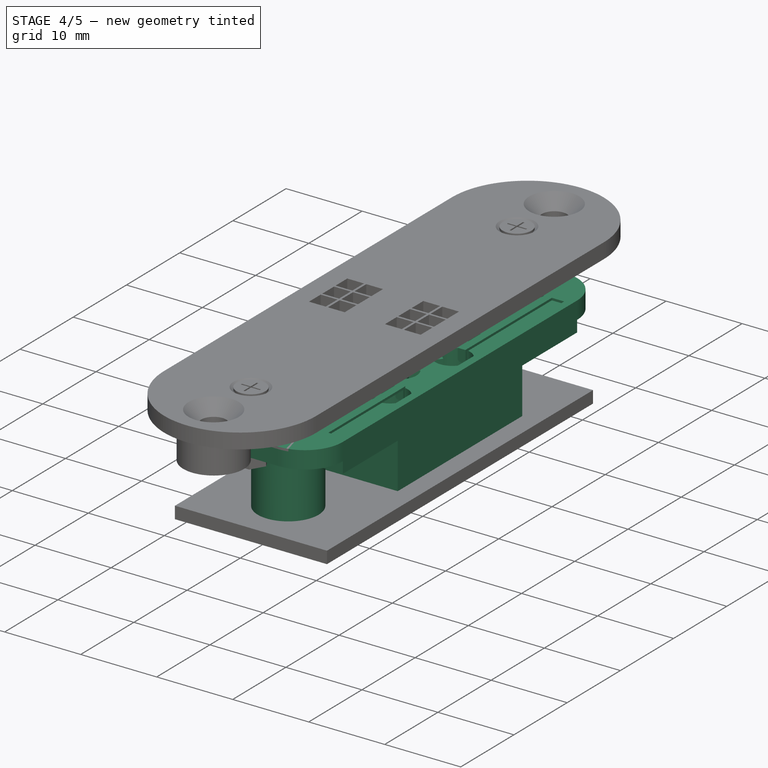
[diagram: stage 4 of 5 — iso view after this stage's code; geometry added in this stage tinted green]
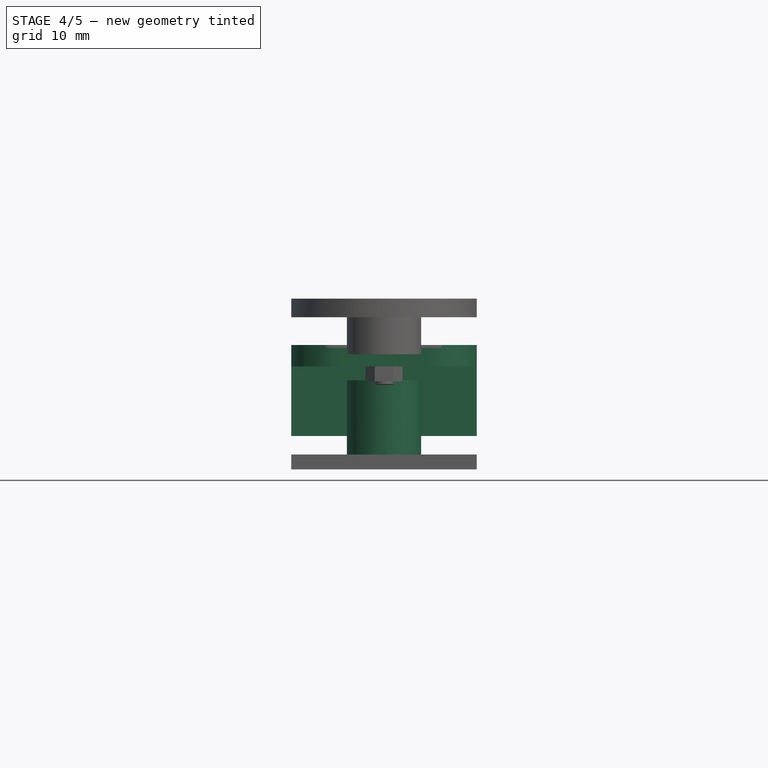
[diagram: stage 4 of 5 — front view after this stage's code; geometry added in this stage tinted green]
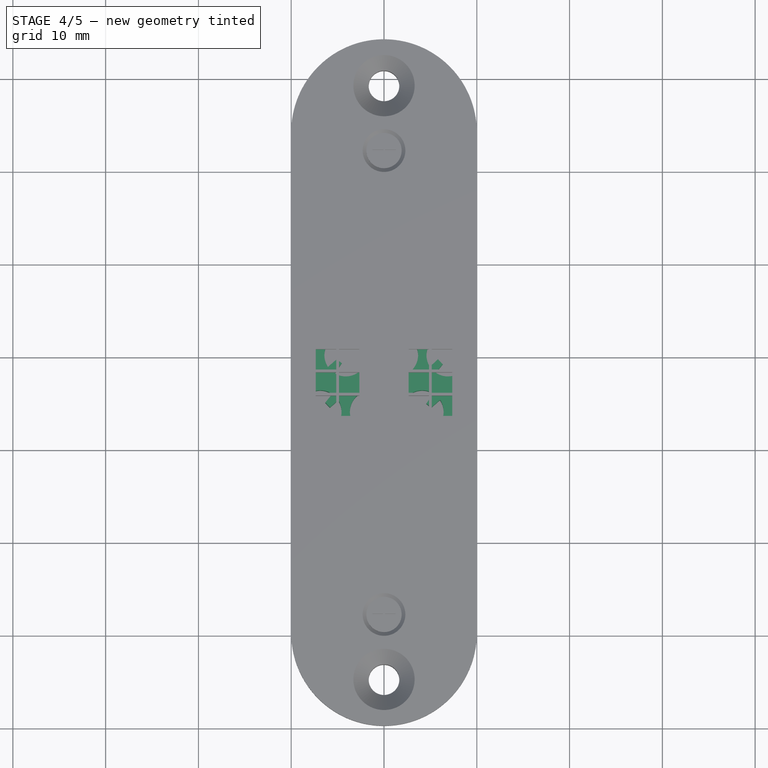
[diagram: stage 4 of 5 — top view after this stage's code; geometry added in this stage tinted green]
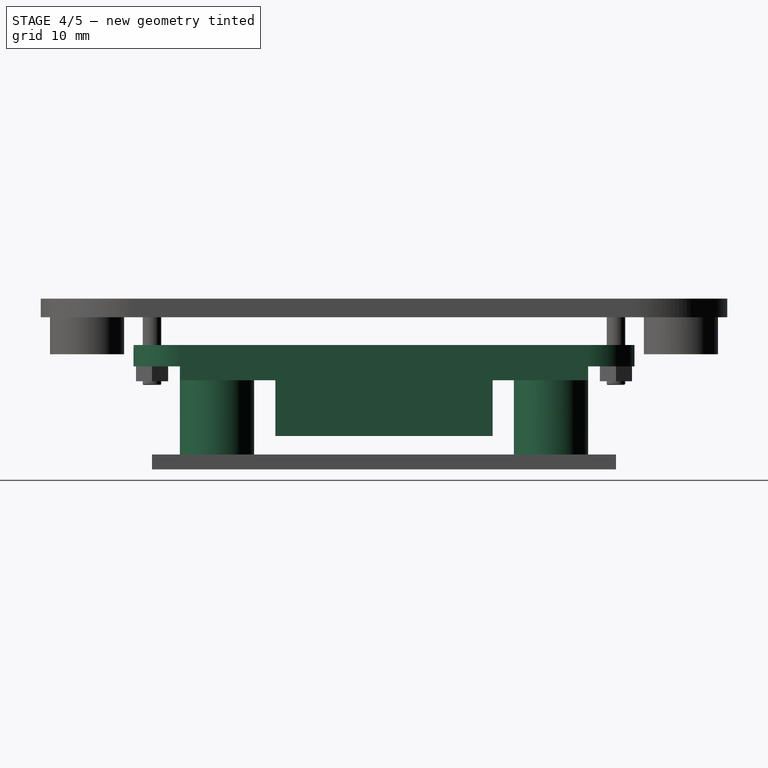
[diagram: stage 4 of 5 — right view after this stage's code; geometry added in this stage tinted green]
FEATURE [Sketcher::SketchObject] Sketch004
  Placement = pos=(0,0,0.3) rot=(0,0,1;0rad)
  sketch-geometry (48):
    g0: LineSegment StartX=2.625 StartY=20.05 StartZ=0 EndX=3.625 EndY=20.05 EndZ=0
    g1: LineSegment StartX=3.625 StartY=20.05 StartZ=0 EndX=3.625 EndY=20.45 EndZ=0
    g2: LineSegment StartX=2.625 StartY=20.05 StartZ=0 EndX=2.625 EndY=20.45 EndZ=0
    g3: LineSegment StartX=2.625 StartY=20.45 StartZ=0 EndX=3.625 EndY=20.45 EndZ=0
    g4: LineSegment StartX=5.375 StartY=22.25 StartZ=0 EndX=6.375 EndY=22.25 EndZ=0
    g5: LineSegment StartX=6.375 StartY=22.25 StartZ=0 EndX=6.375 EndY=21.85 EndZ=0
    g6: LineSegment StartX=6.375 StartY=21.85 StartZ=0 EndX=5.375 EndY=21.85 EndZ=0
    g7: LineSegment StartX=5.375 StartY=21.85 StartZ=0 EndX=5.375 EndY=22.25 EndZ=0
    g8: LineSegment StartX=8.125 StartY=20.45 StartZ=0 EndX=9.125 EndY=20.45 EndZ=0
    g9: LineSegment StartX=9.125 StartY=20.45 StartZ=0 EndX=9.125 EndY=20.05 EndZ=0
    g10: LineSegment StartX=9.125 StartY=20.05 StartZ=0 EndX=8.125 EndY=20.05 EndZ=0
    g11: LineSegment StartX=8.125 StartY=20.05 StartZ=0 EndX=8.125 EndY=20.45 EndZ=0
    g12: LineSegment StartX=10.875 StartY=22.25 StartZ=0 EndX=11.875 EndY=22.25 EndZ=0
    g13: LineSegment StartX=11.875 StartY=22.25 StartZ=0 EndX=11.875 EndY=21.85 EndZ=0
    g14: LineSegment StartX=11.875 StartY=21.85 StartZ=0 EndX=10.875 EndY=21.85 EndZ=0
    g15: LineSegment StartX=10.875 StartY=21.85 StartZ=0 EndX=10.875 EndY=22.25 EndZ=0
    g16: LineSegment StartX=13.625 StartY=20.45 StartZ=0 EndX=14.625 EndY=20.45 EndZ=0
    g17: LineSegment StartX=14.625 StartY=20.45 StartZ=0 EndX=14.625 EndY=20.05 EndZ=0
    g18: LineSegment StartX=14.625 StartY=20.05 StartZ=0 EndX=13.625 EndY=20.05 EndZ=0
    g19: LineSegment StartX=13.625 StartY=20.05 StartZ=0 EndX=13.625 EndY=20.45 EndZ=0
    g20: LineSegment StartX=16.375 StartY=22.25 StartZ=0 EndX=17.375 EndY=22.25 EndZ=0
    g21: LineSegment StartX=17.375 StartY=22.25 StartZ=0 EndX=17.375 EndY=21.85 EndZ=0
    g22: LineSegment StartX=17.375 StartY=21.85 StartZ=0 EndX=16.375 EndY=21.85 EndZ=0
    g23: LineSegment StartX=16.375 StartY=21.85 StartZ=0 EndX=16.375 EndY=22.25 EndZ=0
    g24: LineSegment StartX=2.625 StartY=32.15 StartZ=0 EndX=3.625 EndY=32.15 EndZ=0
    g25: LineSegment StartX=3.625 StartY=32.15 StartZ=0 EndX=3.625 EndY=31.75 EndZ=0
    g26: LineSegment StartX=3.625 StartY=31.75 StartZ=0 EndX=2.625 EndY=31.75 EndZ=0
    g27: LineSegment StartX=2.625 StartY=31.75 StartZ=0 EndX=2.625 EndY=32.15 EndZ=0
    g28: LineSegment StartX=5.375 StartY=33.95 StartZ=0 EndX=6.375 EndY=33.95 EndZ=0
    g29: LineSegment StartX=6.375 StartY=33.95 StartZ=0 EndX=6.375 EndY=33.55 EndZ=0
    g30: LineSegment StartX=6.375 StartY=33.55 StartZ=0 EndX=5.375 EndY=33.55 EndZ=0
    g31: LineSegment StartX=5.375 StartY=33.55 StartZ=0 EndX=5.375 EndY=33.95 EndZ=0
    g32: LineSegment StartX=8.125 StartY=32.15 StartZ=0 EndX=9.125 EndY=32.15 EndZ=0
    g33: LineSegment StartX=9.125 StartY=32.15 StartZ=0 EndX=9.125 EndY=31.75 EndZ=0
    g34: LineSegment StartX=9.125 StartY=31.75 StartZ=0 EndX=8.125 EndY=31.75 EndZ=0
    g35: LineSegment StartX=8.125 StartY=31.75 StartZ=0 EndX=8.125 EndY=32.15 EndZ=0
    g36: LineSegment StartX=10.875 StartY=33.95 StartZ=0 EndX=11.875 EndY=33.95 EndZ=0
    g37: LineSegment StartX=11.875 StartY=33.95 StartZ=0 EndX=11.875 EndY=33.55 EndZ=0
    g38: LineSegment StartX=11.875 StartY=33.55 StartZ=0 EndX=10.875 EndY=33.55 EndZ=0
    g39: LineSegment StartX=10.875 StartY=33.55 StartZ=0 EndX=10.875 EndY=33.95 EndZ=0
    g40: LineSegment StartX=13.625 StartY=32.15 StartZ=0 EndX=14.625 EndY=32.15 EndZ=0
    g41: LineSegment StartX=14.625 StartY=32.15 StartZ=0 EndX=14.625 EndY=31.75 EndZ=0
    g42: LineSegment StartX=14.625 StartY=31.75 StartZ=0 EndX=13.625 EndY=31.75 EndZ=0
    g43: LineSegment StartX=13.625 StartY=31.75 StartZ=0 EndX=13.625 EndY=32.15 EndZ=0
    g44: LineSegment StartX=16.375 StartY=33.95 StartZ=0 EndX=17.375 EndY=33.95 EndZ=0
    g45: LineSegment StartX=17.375 StartY=33.95 StartZ=0 EndX=17.375 EndY=33.55 EndZ=0
    g46: LineSegment StartX=17.375 StartY=33.55 StartZ=0 EndX=16.375 EndY=33.55 EndZ=0
    g47: LineSegment StartX=16.375 StartY=33.55 StartZ=0 EndX=16.375 EndY=33.95 EndZ=0
  constraints (144):
    c: Horizontal(g0)
    c: Coincident(g0,g1)
    c: Vertical(g1)
    c: Coincident(g2,g0)
    c: Vertical(g2)
    c: DistanceX(g0,g0) = 1
    c: DistanceY(g0,g2) = 0.4
    c: Coincident(g3,g2)
    c: Coincident(g3,g1)
    c: Horizontal(g3)
    c: Coincident(g4,g5)
    c: Coincident(g5,g6)
    c: Coincident(g6,g7)
    c: Coincident(g7,g4)
    c: Horizontal(g4)
    c: Horizontal(g6)
    c: Vertical(g5)
    c: Vertical(g7)
    c: Coincident(g8,g9)
    c: Coincident(g9,g10)
    c: Coincident(g10,g11)
    c: Coincident(g11,g8)
    c: Horizontal(g8)
    c: Horizontal(g10)
    c: Vertical(g9)
    c: Vertical(g11)
    c: Coincident(g12,g13)
    c: Coincident(g13,g14)
    c: Coincident(g14,g15)
    c: Coincident(g15,g12)
    c: Horizontal(g12)
    c: Horizontal(g14)
    c: Vertical(g13)
    c: Vertical(g15)
    c: Coincident(g16,g17)
    c: Coincident(g17,g18)
    c: Coincident(g18,g19)
    c: Coincident(g19,g16)
    c: Horizontal(g16)
    c: Horizontal(g18)
    c: Vertical(g17)
    c: Vertical(g19)
    c: Coincident(g20,g21)
    c: Coincident(g21,g22)
    c: Coincident(g22,g23)
    c: Coincident(g23,g20)
    c: Horizontal(g20)
    c: Horizontal(g22)
    c: Vertical(g21)
    c: Vertical(g23)
    c: Coincident(g24,g25)
    c: Coincident(g25,g26)
    c: Coincident(g26,g27)
    c: Coincident(g27,g24)
    c: Horizontal(g24)
    c: Horizontal(g26)
    c: Vertical(g25)
    c: Vertical(g27)
    c: Coincident(g28,g29)
    c: Coincident(g29,g30)
    c: Coincident(g30,g31)
    c: Coincident(g31,g28)
    c: Horizontal(g28)
    c: Horizontal(g30)
    c: Vertical(g29)
    c: Vertical(g31)
    c: Coincident(g32,g33)
    c: Coincident(g33,g34)
    c: Coincident(g34,g35)
    c: Coincident(g35,g32)
    c: Horizontal(g32)
    c: Horizontal(g34)
    c: Vertical(g33)
    c: Vertical(g35)
    c: Coincident(g36,g37)
    c: Coincident(g37,g38)
    c: Coincident(g38,g39)
    c: Coincident(g39,g36)
    c: Horizontal(g36)
    c: Horizontal(g38)
    c: Vertical(g37)
    c: Vertical(g39)
    c: Coincident(g40,g41)
    c: Coincident(g41,g42)
    c: Coincident(g42,g43)
    c: Coincident(g43,g40)
    c: Horizontal(g40)
    c: Horizontal(g42)
    c: Vertical(g41)
    c: Vertical(g43)
    c: DistanceX(g4,g4) = 1
    c: DistanceX(g8,g8) = 1
    c: DistanceX(g12,g12) = 1
    c: DistanceX(g16,g16) = 1
    c: DistanceX(g20,g20) = 1
    c: DistanceY(g6,g4) = 0.4
    c: DistanceY(g10,g8) = 0.4
    c: DistanceY(g14,g12) = 0.4
    c: DistanceY(g18,g16) = 0.4
    c: DistanceY(g22,g20) = 0.4
    c: DistanceY(g26,g24) = 0.4
    c: DistanceY(g30,g28) = 0.4
    c: DistanceY(g34,g32) = 0.4
    c: DistanceY(g38,g36) = 0.4
    c: DistanceY(g42,g40) = 0.4
    c: DistanceX(g2,g26) = 0
    c: DistanceX(g1,g25) = 0
    c: DistanceX(g4,g30) = 0
    c: DistanceX(g4,g29) = 0
    c: DistanceX(g8,g34) = 0
    c: DistanceX(g8,g33) = 0
    c: DistanceX(g12,g38) = 0
    c: DistanceX(g12,g37) = 0
    c: DistanceX(g16,g42) = 0
    c: DistanceX(g16,g41) = 0
    c: Coincident(g44,g45)
    c: Coincident(g45,g46)
    c: Coincident(g46,g47)
    c: Coincident(g47,g44)
    c: Horizontal(g44)
    c: Horizontal(g46)
    c: Vertical(g45)
    c: Vertical(g47)
    c: DistanceY(g46,g44) = 0.4
    c: DistanceX(g20,g46) = 0
    c: DistanceX(g20,g45) = 0
    c: DistanceY(g10,g0) = 0
    c: DistanceY(g18,g9) = 0
    c: DistanceY(g14,g5) = 0
    c: DistanceY(g22,g13) = 0
    c: DistanceY(g34,g25) = 0
    c: DistanceY(g42,g33) = 0
    c: DistanceY(g46,g37) = 0
    c: DistanceY(g38,g29) = 0
    c: DistanceY(g-1,g26) = 31.75
    c: DistanceY(g-1,g30) = 33.55
    c: DistanceX(g1,g4) = 1.75
    c: DistanceX(g4,g8) = 1.75
    c: DistanceX(g8,g12) = 1.75
    c: DistanceX(g12,g16) = 1.75
    c: DistanceX(g16,g20) = 1.75
    c: DistanceX(g-1,g0) = 2.625
    c: DistanceY(g-1,g4) = 22.25
    c: DistanceY(g-1,g2) = 20.45
FEATURE [PartDesign::Pad] Pad004
  Length = 1.3
  Length2 = 100
  Placement = pos=(0,0,0.3) rot=(0,0,1;0rad)
  Sketch = -> Sketch004
  Type = 0
FEATURE [PartDesign::Fillet] Fillet002
  Base = -> Pad004 [Edge67,Edge72,Edge60,Edge55,Edge48,Edge43,Edge36,Edge31,Edge24,Edge19,Edge12,Edge7,Edge79,Edge84,Edge91,Edge96,Edge103,Edge108,Edge115,Edge120,Edge127,Edge132,Edge139,Edge144]
  Placement = pos=(0,0,0.3) rot=(0,0,1;0rad)
  Radius = 0.3
FEATURE [PartDesign::Fillet] Fillet003
  Base = -> Fillet002 [Edge213,Edge195,Edge166,Edge159,Edge130,Edge123,Edge105,Edge76,Edge69,Edge40,Edge33,Edge4]
  Placement = pos=(0,0,0.3) rot=(0,0,1;0rad)
  Radius = 0.2
FEATURE [Sketcher::SketchObject] Sketch009
  sketch-geometry (58):
    g0: LineSegment StartX=0 StartY=0 StartZ=0 EndX=20 EndY=0 EndZ=0
    g1: LineSegment StartX=20 StartY=0 StartZ=0 EndX=20 EndY=54 EndZ=0
    g2: LineSegment StartX=20 StartY=54 StartZ=0 EndX=0 EndY=54 EndZ=0
    g3: LineSegment StartX=0 StartY=54 StartZ=0 EndX=0 EndY=0 EndZ=0
    g4: LineSegment StartX=1 StartY=48 StartZ=0 EndX=1 EndY=6 EndZ=0
    g5: LineSegment StartX=1 StartY=6 StartZ=0 EndX=2.625 EndY=6 EndZ=0
    g6: LineSegment StartX=2.625 StartY=6 StartZ=0 EndX=2.625 EndY=20.45 EndZ=0
    g7: LineSegment StartX=2.625 StartY=20.45 StartZ=0 EndX=3.625 EndY=20.45 EndZ=0
    g8: LineSegment StartX=3.625 StartY=20.45 StartZ=0 EndX=3.625 EndY=6 EndZ=0
    g9: LineSegment StartX=3.625 StartY=6 StartZ=0 EndX=5.375 EndY=6 EndZ=0
    g10: LineSegment StartX=5.375 StartY=6 StartZ=0 EndX=5.375 EndY=22.25 EndZ=0
    g11: LineSegment StartX=5.375 StartY=22.25 StartZ=0 EndX=6.375 EndY=22.25 EndZ=0
    g12: LineSegment StartX=6.375 StartY=22.25 StartZ=0 EndX=6.375 EndY=6 EndZ=0
    g13: LineSegment StartX=6.375 StartY=6 StartZ=0 EndX=8.125 EndY=6 EndZ=0
    g14: LineSegment StartX=8.125 StartY=6 StartZ=0 EndX=8.125 EndY=20.45 EndZ=0
    g15: LineSegment StartX=8.125 StartY=20.45 StartZ=0 EndX=9.125 EndY=20.45 EndZ=0
    g16: LineSegment StartX=9.125 StartY=20.45 StartZ=0 EndX=9.125 EndY=6 EndZ=0
    g17: LineSegment StartX=9.125 StartY=6 StartZ=0 EndX=10.875 EndY=6 EndZ=0
    g18: LineSegment StartX=10.875 StartY=6 StartZ=0 EndX=10.875 EndY=22.25 EndZ=0
    g19: LineSegment StartX=10.875 StartY=22.25 StartZ=0 EndX=11.875 EndY=22.25 EndZ=0
    g20: LineSegment StartX=11.875 StartY=22.25 StartZ=0 EndX=11.875 EndY=6 EndZ=0
    g21: LineSegment StartX=11.875 StartY=6 StartZ=0 EndX=13.625 EndY=6 EndZ=0
    g22: LineSegment StartX=13.625 StartY=6 StartZ=0 EndX=13.625 EndY=20.45 EndZ=0
    g23: LineSegment StartX=13.625 StartY=20.45 StartZ=0 EndX=14.625 EndY=20.45 EndZ=0
    g24: LineSegment StartX=14.625 StartY=20.45 StartZ=0 EndX=14.625 EndY=6 EndZ=0
    g25: LineSegment StartX=19 StartY=6 StartZ=0 EndX=19 EndY=48 EndZ=0
    g26: LineSegment StartX=19 StartY=48 StartZ=0 EndX=17.375 EndY=48 EndZ=0
    g27: LineSegment StartX=17.375 StartY=48 StartZ=0 EndX=17.375 EndY=33.55 EndZ=0
    g28: LineSegment StartX=17.375 StartY=33.55 StartZ=0 EndX=16.375 EndY=33.55 EndZ=0
    g29: LineSegment StartX=16.375 StartY=33.55 StartZ=0 EndX=16.375 EndY=48 EndZ=0
    g30: LineSegment StartX=16.375 StartY=48 StartZ=0 EndX=14.625 EndY=48 EndZ=0
    g31: LineSegment StartX=14.625 StartY=48 StartZ=0 EndX=14.625 EndY=31.75 EndZ=0
    g32: LineSegment StartX=14.625 StartY=31.75 StartZ=0 EndX=13.625 EndY=31.75 EndZ=0
    g33: LineSegment StartX=13.625 StartY=31.75 StartZ=0 EndX=13.625 EndY=48 EndZ=0
    g34: LineSegment StartX=13.625 StartY=48 StartZ=0 EndX=11.875 EndY=48 EndZ=0
    g35: LineSegment StartX=11.875 StartY=48 StartZ=0 EndX=11.875 EndY=33.55 EndZ=0
    g36: LineSegment StartX=11.875 StartY=33.55 StartZ=0 EndX=10.875 EndY=33.55 EndZ=0
    g37: LineSegment StartX=10.875 StartY=33.55 StartZ=0 EndX=10.875 EndY=48 EndZ=0
    g38: LineSegment StartX=10.875 StartY=48 StartZ=0 EndX=9.125 EndY=48 EndZ=0
    g39: LineSegment StartX=9.125 StartY=48 StartZ=0 EndX=9.125 EndY=31.75 EndZ=0
    g40: LineSegment StartX=9.125 StartY=31.75 StartZ=0 EndX=8.125 EndY=31.75 EndZ=0
    g41: LineSegment StartX=8.125 StartY=31.75 StartZ=0 EndX=8.125 EndY=48 EndZ=0
    g42: LineSegment StartX=8.125 StartY=48 StartZ=0 EndX=6.375 EndY=48 EndZ=0
    g43: LineSegment StartX=6.375 StartY=48 StartZ=0 EndX=6.375 EndY=33.55 EndZ=0
    g44: LineSegment StartX=6.375 StartY=33.55 StartZ=0 EndX=5.375 EndY=33.55 EndZ=0
    g45: LineSegment StartX=5.375 StartY=33.55 StartZ=0 EndX=5.375 EndY=48 EndZ=0
    g46: LineSegment StartX=5.375 StartY=48 StartZ=0 EndX=3.625 EndY=48 EndZ=0
    g47: LineSegment StartX=3.625 StartY=48 StartZ=0 EndX=3.625 EndY=31.75 EndZ=0
    g48: LineSegment StartX=3.625 StartY=31.75 StartZ=0 EndX=2.625 EndY=31.75 EndZ=0
    g49: LineSegment StartX=2.625 StartY=31.75 StartZ=0 EndX=2.625 EndY=48 EndZ=0
    g50: LineSegment StartX=2.625 StartY=48 StartZ=0 EndX=1 EndY=48 EndZ=0
    g51: Circle CenterX=10 CenterY=52 CenterZ=0 NormalX=0 NormalY=0 NormalZ=1 Radius=1.1
    g52: Circle CenterX=10 CenterY=2 CenterZ=0 NormalX=0 NormalY=0 NormalZ=1 Radius=1.1
    g53: LineSegment StartX=14.625 StartY=6 StartZ=0 EndX=16.375 EndY=6 EndZ=0
    g54: LineSegment StartX=16.375 StartY=6 StartZ=0 EndX=16.375 EndY=22.25 EndZ=0
    g55: LineSegment StartX=16.375 StartY=22.25 StartZ=0 EndX=17.375 EndY=22.25 EndZ=0
    g56: LineSegment StartX=17.375 StartY=22.25 StartZ=0 EndX=17.375 EndY=6 EndZ=0
    g57: LineSegment StartX=17.375 StartY=6 StartZ=0 EndX=19 EndY=6 EndZ=0
  constraints (173):
    c: Coincident(g0,g1)
    c: Coincident(g1,g2)
    c: Coincident(g2,g3)
    c: Coincident(g3,g0)
    c: Horizontal(g0)
    c: Horizontal(g2)
    c: Vertical(g1)
    c: Vertical(g3)
    c: Coincident(g0,g-1)
    c: DistanceY(g-1,g2) = 54
    c: DistanceX(g2,g1) = 20
    c: Vertical(g4)
    c: Coincident(g4,g5)
    c: Horizontal(g5)
    c: Coincident(g5,g6)
    c: Vertical(g6)
    c: Coincident(g6,g7)
    c: Coincident(g7,g8)
    c: Vertical(g8)
    c: Coincident(g8,g9)
    c: Horizontal(g9)
    c: Coincident(g9,g10)
    c: Vertical(g10)
    c: Coincident(g10,g11)
    c: Coincident(g11,g12)
    c: Vertical(g12)
    c: Coincident(g12,g13)
    c: Coincident(g13,g14)
    c: Vertical(g14)
    c: Coincident(g14,g15)
    c: Horizontal(g15)
    c: Coincident(g15,g16)
    c: Vertical(g16)
    c: Coincident(g16,g17)
    c: Horizontal(g17)
    c: Coincident(g17,g18)
    c: Vertical(g18)
    c: Coincident(g18,g19)
    c: Horizontal(g19)
    c: Coincident(g19,g20)
    c: Vertical(g20)
    c: Coincident(g20,g21)
    c: Horizontal(g21)
    c: Coincident(g21,g22)
    c: Vertical(g22)
    c: Coincident(g22,g23)
    c: Horizontal(g23)
    c: Coincident(g23,g24)
    c: Vertical(g24)
    c: Vertical(g25)
    c: Coincident(g25,g26)
    c: Coincident(g26,g27)
    c: Vertical(g27)
    c: Coincident(g27,g28)
    c: Coincident(g28,g29)
    c: Vertical(g29)
    c: Coincident(g29,g30)
    c: Horizontal(g30)
    c: Coincident(g30,g31)
    c: Vertical(g31)
    c: Coincident(g31,g32)
    c: Horizontal(g32)
    c: Coincident(g32,g33)
    c: Vertical(g33)
    c: Coincident(g33,g34)
    c: Horizontal(g34)
    c: Coincident(g34,g35)
    c: Vertical(g35)
    c: Coincident(g35,g36)
    c: Horizontal(g36)
    c: Coincident(g36,g37)
    c: Vertical(g37)
    c: Coincident(g37,g38)
    c: Horizontal(g38)
    c: Coincident(g38,g39)
    c: Vertical(g39)
    c: Coincident(g39,g40)
    c: Horizontal(g40)
    c: Coincident(g40,g41)
    c: Vertical(g41)
    c: Coincident(g41,g42)
    c: Horizontal(g42)
    c: Coincident(g42,g43)
    c: Vertical(g43)
    c: Coincident(g43,g44)
    c: Horizontal(g44)
    c: Coincident(g44,g45)
    c: Vertical(g45)
    c: Coincident(g45,g46)
    c: Horizontal(g46)
    c: Coincident(g46,g47)
    c: Vertical(g47)
    c: Coincident(g47,g48)
    c: Horizontal(g48)
    c: Coincident(g48,g49)
    c: Vertical(g49)
    c: Coincident(g49,g50)
    c: Coincident(g50,g4)
    c: Radius(g52) = 1.1
    c: Radius(g51) = 1.1
    c: DistanceX(g-1,g51) = 10
    c: DistanceX(g-1,g52) = 10
    c: DistanceY(g-1,g52) = 2
    c: DistanceY(g-1,g51) = 52
    c: DistanceX(g-1,g4) = 1
    c: DistanceX(g25,g0) = 1
    c: DistanceX(g-1,g5) = 2.625
    c: DistanceX(g6,g7) = 1
    c: DistanceX(g7,g10) = 1.75
    c: DistanceX(g11,g14) = 1.75
    c: DistanceX(g15,g18) = 1.75
    c: DistanceX(g19,g22) = 1.75
    c: DistanceX(g10,g11) = 1
    c: DistanceX(g14,g15) = 1
    c: DistanceX(g18,g19) = 1
    c: DistanceX(g22,g23) = 1
    c: DistanceX(g48,g47) = 1
    c: DistanceX(g44,g43) = 1
    c: DistanceX(g40,g39) = 1
    c: DistanceX(g36,g35) = 1
    c: DistanceX(g32,g31) = 1
    c: Coincident(g24,g53)
    c: Horizontal(g53)
    c: Coincident(g53,g54)
    c: Vertical(g54)
    c: Coincident(g54,g55)
    c: Horizontal(g55)
    c: Coincident(g55,g56)
    c: Vertical(g56)
    c: Coincident(g57,g56)
    c: Coincident(g57,g25)
    c: DistanceX(g54,g55) = 1
    c: DistanceX(g23,g54) = 1.75
    c: DistanceX(g28,g27) = 1
    c: DistanceX(g47,g44) = 1.75
    c: DistanceX(g43,g40) = 1.75
    c: DistanceX(g39,g36) = 1.75
    c: DistanceX(g35,g32) = 1.75
    c: DistanceX(g31,g28) = 1.75
    c: DistanceX(g-1,g48) = 2.625
    c: DistanceY(g4,g49) = 0
    c: DistanceY(g49,g46) = 0
    c: DistanceY(g45,g42) = 0
    c: DistanceY(g41,g38) = 0
    c: DistanceY(g37,g34) = 0
    c: DistanceY(g33,g30) = 0
    c: DistanceY(g29,g26) = 0
    c: Horizontal(g26)
    c: Horizontal(g7)
    c: Horizontal(g11)
    c: Horizontal(g57)
    c: DistanceY(g5,g8) = 0
    c: Horizontal(g13)
    c: DistanceY(g9,g12) = 0
    c: DistanceY(g13,g16) = 0
    c: DistanceY(g24,g21) = 0
    c: DistanceY(g20,g17) = 0
    c: DistanceY(g53,g56) = 0
    c: DistanceY(g-1,g4) = 6
    c: DistanceY(g4,g2) = 6
    c: Horizontal(g28)
    c: DistanceY(g44,g2) = 20.45
    c: DistanceY(g36,g43) = 0
    c: DistanceY(g28,g35) = 0
    c: DistanceY(g-1,g6) = 20.45
    c: DistanceY(g7,g14) = 0
    c: DistanceY(g15,g22) = 0
    c: DistanceY(g48,g2) = 22.25
    c: DistanceY(g47,g40) = 0
    c: DistanceY(g39,g32) = 0
    c: DistanceY(g-1,g10) = 22.25
    c: DistanceY(g11,g18) = 0
    c: DistanceY(g19,g54) = 0
FEATURE [PartDesign::Pad] Pad009
  Length = 0.3
  Length2 = 100
  Sketch = -> Sketch009
  Type = 0
FEATURE [PartDesign::Fillet] Fillet004
  Base = -> Pad009 [Edge1,Edge2,Edge5,Edge8]
  Radius = 5
FEATURE [Part::MultiFuse] Fusion003  label="Lever"
  Placement = pos=(0,54,0.3) rot=(1,0,0;3.14159rad)
  Shapes = -> [Fillet003,Fillet004]
FEATURE [Sketcher::SketchObject] Sketch021
  sketch-geometry (11):
    g0: LineSegment StartX=0 StartY=0 StartZ=0 EndX=20 EndY=0 EndZ=0
    g1: LineSegment StartX=20 StartY=0 StartZ=0 EndX=20 EndY=27 EndZ=0
    g2: LineSegment StartX=20 StartY=27 StartZ=0 EndX=0 EndY=27 EndZ=0
    g3: LineSegment StartX=0 StartY=27 StartZ=0 EndX=0 EndY=0 EndZ=0
    g4: Circle CenterX=5.875 CenterY=8.65 CenterZ=0 NormalX=0 NormalY=0 NormalZ=1 Radius=2.3
    g5: Circle CenterX=11.375 CenterY=8.65 CenterZ=0 NormalX=0 NormalY=0 NormalZ=1 Radius=2.3
    g6: Circle CenterX=16.875 CenterY=8.65 CenterZ=0 NormalX=0 NormalY=0 NormalZ=1 Radius=2.3
    g7: Circle CenterX=14.125 CenterY=3.05 CenterZ=0 NormalX=0 NormalY=0 NormalZ=1 Radius=2.3
    g8: Circle CenterX=8.625 CenterY=3.05 CenterZ=0 NormalX=0 NormalY=0 NormalZ=1 Radius=2.3
    g9: Circle CenterX=3.125 CenterY=3.05 CenterZ=0 NormalX=0 NormalY=0 NormalZ=1 Radius=2.3
    g10: Circle CenterX=10 CenterY=25 CenterZ=0 NormalX=0 NormalY=0 NormalZ=1 Radius=1.1
  constraints (31):
    c: Coincident(g0,g1)
    c: Coincident(g1,g2)
    c: Coincident(g2,g3)
    c: Coincident(g3,g0)
    c: Horizontal(g0)
    c: Horizontal(g2)
    c: Vertical(g1)
    c: Vertical(g3)
    c: Coincident(g0,g-1)
    c: DistanceX(g2,g1) = 20
    c: DistanceY(g0,g1) = 27
    c: Radius(g9) = 2.3
    c: Radius(g8) = 2.3
    c: Radius(g7) = 2.3
    c: Radius(g6) = 2.3
    c: Radius(g5) = 2.3
    c: Radius(g4) = 2.3
    c: DistanceY(g-1,g4) = 8.65
    c: DistanceY(g-1,g5) = 8.65
    c: DistanceY(g-1,g6) = 8.65
    c: DistanceY(g-1,g9) = 3.05
    c: DistanceX(g-1,g9) = 3.125
    c: DistanceY(g-1,g8) = 3.05
    c: DistanceY(g-1,g7) = 3.05
    c: DistanceX(g9,g8) = 5.5
    c: DistanceX(g8,g7) = 5.5
    c: DistanceX(g5,g6) = 5.5
    c: DistanceX(g4,g5) = 5.5
    c: Radius(g10) = 1.1
    c: DistanceX(g-1,g10) = 10
    c: DistanceX(g9,g4) = 2.75
FEATURE [Sketcher::SketchObject] Sketch022
  Placement = pos=(0,0,3.5) rot=(0,0,1;0rad)
  sketch-geometry (28):
    g0: LineSegment StartX=0 StartY=0 StartZ=0 EndX=20 EndY=0 EndZ=0
    g1: LineSegment StartX=20 StartY=0 StartZ=0 EndX=20 EndY=11.7 EndZ=0
    g2: LineSegment StartX=20 StartY=11.7 StartZ=0 EndX=0 EndY=11.7 EndZ=0
    g3: LineSegment StartX=0 StartY=11.7 StartZ=0 EndX=0 EndY=0 EndZ=0
    g4: LineSegment StartX=3.325 StartY=11.2 StartZ=0 EndX=8.425 EndY=11.2 EndZ=0
    g5: LineSegment StartX=8.425 StartY=11.2 StartZ=0 EndX=8.425 EndY=6.1 EndZ=0
    g6: LineSegment StartX=8.425 StartY=6.1 StartZ=0 EndX=3.325 EndY=6.1 EndZ=0
    g7: LineSegment StartX=3.325 StartY=6.1 StartZ=0 EndX=3.325 EndY=11.2 EndZ=0
    g8: LineSegment StartX=8.825 StartY=11.2 StartZ=0 EndX=13.925 EndY=11.2 EndZ=0
    g9: LineSegment StartX=13.925 StartY=11.2 StartZ=0 EndX=13.925 EndY=6.1 EndZ=0
    g10: LineSegment StartX=13.925 StartY=6.1 StartZ=0 EndX=8.825 EndY=6.1 EndZ=0
    g11: LineSegment StartX=8.825 StartY=6.1 StartZ=0 EndX=8.825 EndY=11.2 EndZ=0
    g12: LineSegment StartX=14.325 StartY=11.2 StartZ=0 EndX=19.425 EndY=11.2 EndZ=0
    g13: LineSegment StartX=19.425 StartY=11.2 StartZ=0 EndX=19.425 EndY=6.1 EndZ=0
    g14: LineSegment StartX=19.425 StartY=6.1 StartZ=0 EndX=14.325 EndY=6.1 EndZ=0
    g15: LineSegment StartX=14.325 StartY=6.1 StartZ=0 EndX=14.325 EndY=11.2 EndZ=0
    g16: LineSegment StartX=5.675 StartY=5.6 StartZ=0 EndX=0.575 EndY=5.6 EndZ=0
    g17: LineSegment StartX=0.575 StartY=5.6 StartZ=0 EndX=0.575 EndY=0.5 EndZ=0
    g18: LineSegment StartX=0.575 StartY=0.5 StartZ=0 EndX=5.675 EndY=0.5 EndZ=0
    g19: LineSegment StartX=5.675 StartY=0.5 StartZ=0 EndX=5.675 EndY=5.6 EndZ=0
    g20: LineSegment StartX=6.075 StartY=5.6 StartZ=0 EndX=11.175 EndY=5.6 EndZ=0
    g21: LineSegment StartX=11.175 StartY=5.6 StartZ=0 EndX=11.175 EndY=0.5 EndZ=0
    g22: LineSegment StartX=11.175 StartY=0.5 StartZ=0 EndX=6.075 EndY=0.5 EndZ=0
    g23: LineSegment StartX=6.075 StartY=0.5 StartZ=0 EndX=6.075 EndY=5.6 EndZ=0
    g24: LineSegment StartX=11.575 StartY=5.6 StartZ=0 EndX=16.675 EndY=5.6 EndZ=0
    g25: LineSegment StartX=16.675 StartY=5.6 StartZ=0 EndX=16.675 EndY=0.5 EndZ=0
    g26: LineSegment StartX=16.675 StartY=0.5 StartZ=0 EndX=11.575 EndY=0.5 EndZ=0
    g27: LineSegment StartX=11.575 StartY=0.5 StartZ=0 EndX=11.575 EndY=5.6 EndZ=0
  constraints (83):
    c: Coincident(g0,g1)
    c: Coincident(g1,g2)
    c: Coincident(g2,g3)
    c: Coincident(g3,g0)
    c: Horizontal(g0)
    c: Horizontal(g2)
    c: Vertical(g1)
    c: Vertical(g3)
    c: Coincident(g0,g-1)
    c: DistanceX(g2,g1) = 20
    c: DistanceY(g0,g1) = 11.7
    c: Coincident(g4,g5)
    c: Coincident(g5,g6)
    c: Coincident(g6,g7)
    c: Coincident(g7,g4)
    c: Horizontal(g4)
    c: Horizontal(g6)
    c: Vertical(g5)
    c: Vertical(g7)
    c: Coincident(g8,g9)
    c: Coincident(g9,g10)
    c: Coincident(g10,g11)
    c: Coincident(g11,g8)
    c: Horizontal(g8)
    c: Horizontal(g10)
    c: Vertical(g9)
    c: Vertical(g11)
    c: Coincident(g12,g13)
    c: Coincident(g13,g14)
    c: Coincident(g14,g15)
    c: Coincident(g15,g12)
    c: Horizontal(g12)
    c: Horizontal(g14)
    c: Vertical(g13)
    c: Vertical(g15)
    c: Coincident(g16,g17)
    c: Coincident(g17,g18)
    c: Coincident(g18,g19)
    c: Coincident(g19,g16)
    c: Horizontal(g16)
    c: Horizontal(g18)
    c: Vertical(g17)
    c: Vertical(g19)
    c: Coincident(g20,g21)
    c: Coincident(g21,g22)
    c: Coincident(g22,g23)
    c: Coincident(g23,g20)
    c: Horizontal(g20)
    c: Horizontal(g22)
    c: Vertical(g21)
    c: Vertical(g23)
    c: Coincident(g24,g25)
    c: Coincident(g25,g26)
    c: Coincident(g26,g27)
    c: Coincident(g27,g24)
    c: Horizontal(g24)
    c: Horizontal(g26)
    c: Vertical(g25)
    c: Vertical(g27)
    c: DistanceX(g6,g5) = 5.1
    c: DistanceX(g8,g8) = 5.1
    c: DistanceY(g10,g8) = 5.1
    c: DistanceY(g6,g4) = 5.1
    c: DistanceX(g12,g12) = 5.1
    c: DistanceY(g13,g12) = 5.1
    c: DistanceY(g26,g24) = 5.1
    c: DistanceX(g24,g24) = 5.1
    c: DistanceX(g20,g20) = 5.1
    c: DistanceY(g22,g20) = 5.1
    c: DistanceX(g16,g16) = 5.1
    c: DistanceY(g17,g16) = 5.1
    c: DistanceY(g20,g16) = 0
    c: DistanceY(g24,g20) = 0
    c: DistanceY(g8,g4) = 0
    c: DistanceY(g12,g8) = 0
    c: DistanceY(g16,g6) = 0.5
    c: DistanceY(g-1,g17) = 0.5
    c: DistanceX(g16,g20) = 0.4
    c: DistanceX(g20,g24) = 0.4
    c: DistanceX(g4,g8) = 0.4
    c: DistanceX(g8,g12) = 0.4
    c: DistanceX(g16,g6) = 2.75
    c: DistanceX(g-1,g17) = 0.575
FEATURE [PartDesign::Pad] Pad021
  Length = 3.5
  Length2 = 100
  Sketch = -> Sketch021
  Type = 0
FEATURE [PartDesign::Pad] Pad022
  Length = 6
  Length2 = 100
  Placement = pos=(0,0,3.5) rot=(0,0,1;0rad)
  Sketch = -> Sketch022
  Type = 0
FEATURE [Part::MultiFuse] Fusion008
  Shapes = -> [Pad024,Pad021,Pad022,Pad023]
FEATURE [Part::MultiFuse] Fusion010
  Shapes = -> [Fusion008,Fusion009]
FEATURE [PartDesign::Fillet] Fillet005
  Base = -> Fusion010 [Edge19,Edge18,Edge55,Edge92]
  Radius = 5
FEATURE [Part::Cut] Cut001  label="MotorHolder"
  Base = -> Fillet005
  Placement = pos=(20,27,0) rot=(0,1,0;3.14159rad)
  Tool = -> Pad013
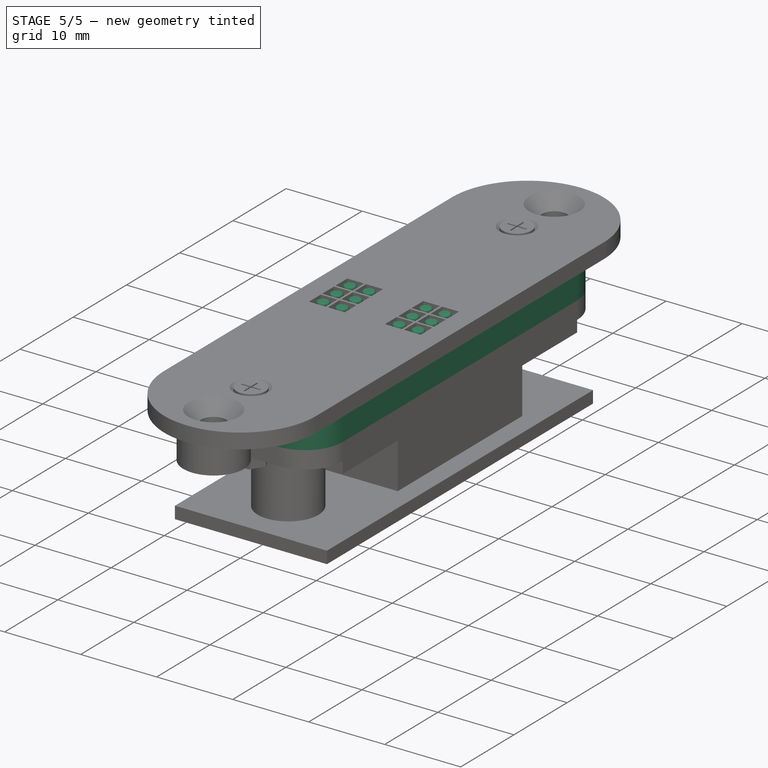
[diagram: stage 5 of 5 — iso view after this stage's code; geometry added in this stage tinted green]
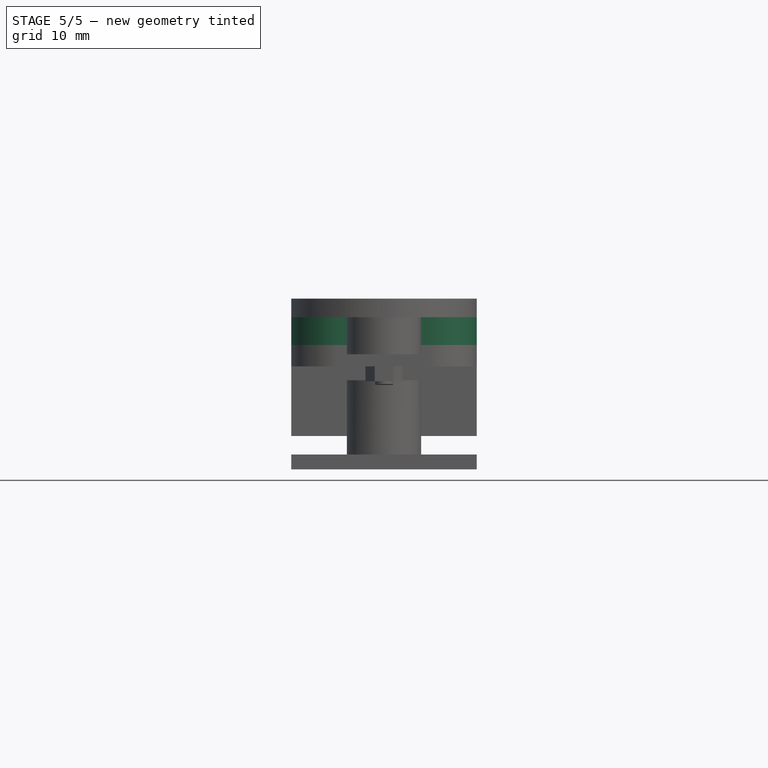
[diagram: stage 5 of 5 — front view after this stage's code; geometry added in this stage tinted green]
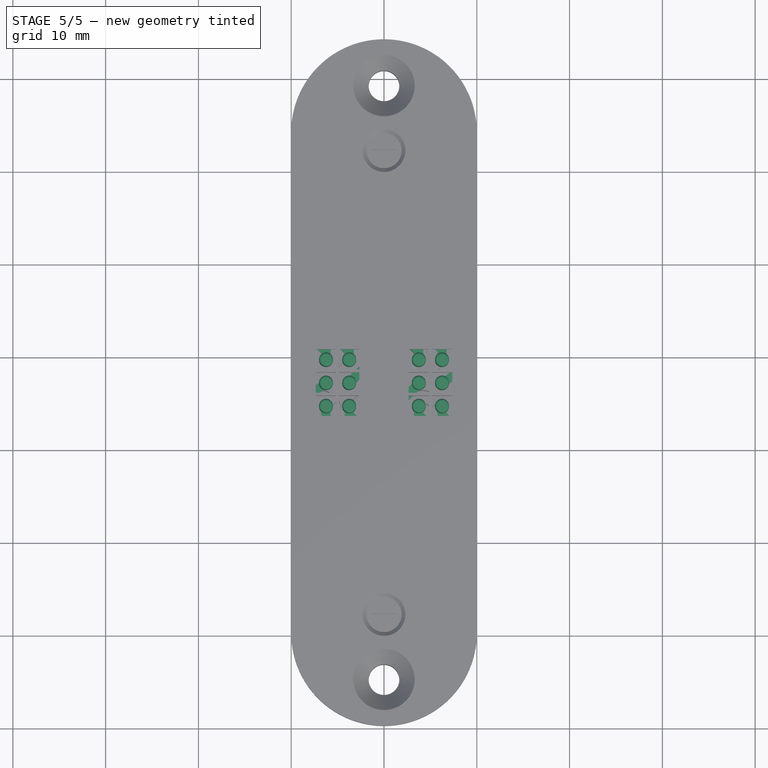
[diagram: stage 5 of 5 — top view after this stage's code; geometry added in this stage tinted green]
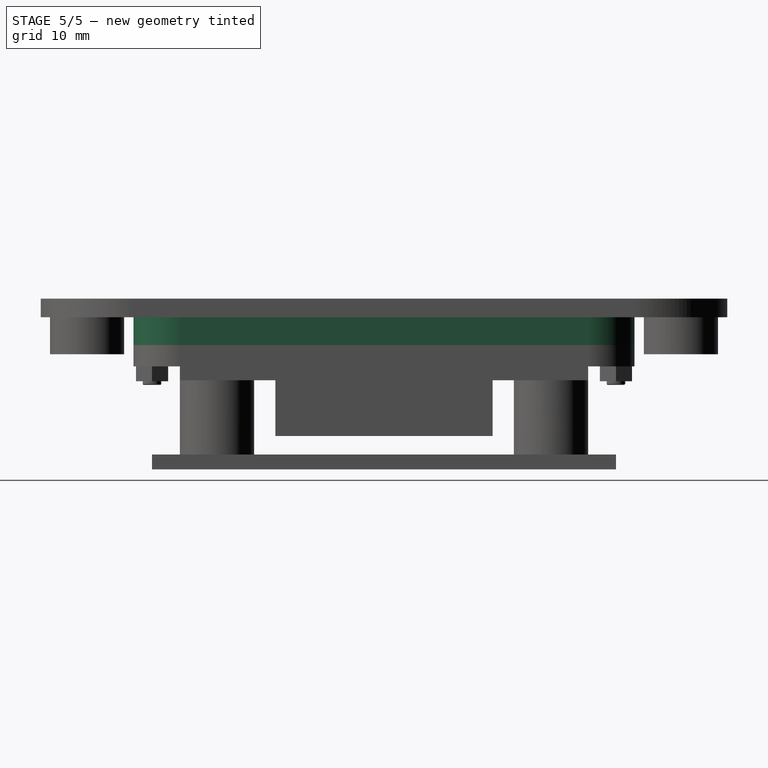
[diagram: stage 5 of 5 — right view after this stage's code; geometry added in this stage tinted green]
FEATURE [Sketcher::SketchObject] Sketch
  sketch-geometry (48):
    g0: LineSegment StartX=2.625 StartY=6 StartZ=0 EndX=2.625 EndY=21 EndZ=0
    g1: LineSegment StartX=3.625 StartY=21.4142 StartZ=0 EndX=3.625 EndY=6 EndZ=0
    g2: LineSegment StartX=5.375 StartY=6 StartZ=0 EndX=5.375 EndY=21 EndZ=0
    g3: LineSegment StartX=6.375 StartY=21.4142 StartZ=0 EndX=6.375 EndY=6 EndZ=0
    g4: LineSegment StartX=8.125 StartY=6 StartZ=0 EndX=8.125 EndY=21 EndZ=0
    g5: LineSegment StartX=9.125 StartY=21.4142 StartZ=0 EndX=9.125 EndY=6 EndZ=0
    g6: LineSegment StartX=10.875 StartY=6 StartZ=0 EndX=10.875 EndY=24.8 EndZ=0
    g7: LineSegment StartX=11.875 StartY=24.3858 StartZ=0 EndX=11.875 EndY=6 EndZ=0
    g8: LineSegment StartX=16.375 StartY=6 StartZ=0 EndX=16.375 EndY=22.75 EndZ=0
    g9: LineSegment StartX=17.375 StartY=23.1642 StartZ=0 EndX=17.375 EndY=6 EndZ=0
    g10: LineSegment StartX=5.375 StartY=21 StartZ=0 EndX=3.25 EndY=23.125 EndZ=0
    g11: LineSegment StartX=4.25 StartY=23.5392 StartZ=0 EndX=6.375 EndY=21.4142 EndZ=0
    g12: LineSegment StartX=2.625 StartY=21 StartZ=0 EndX=1.425 EndY=22.2 EndZ=0
    g13: LineSegment StartX=3.25 StartY=23.125 StartZ=0 EndX=3.25 EndY=24.5 EndZ=0
    g14: LineSegment StartX=3.25 StartY=24.5 StartZ=0 EndX=4.25 EndY=24.5 EndZ=0
    g15: LineSegment StartX=4.25 StartY=24.5 StartZ=0 EndX=4.25 EndY=23.5392 EndZ=0
    g16: LineSegment StartX=8.125 StartY=21 StartZ=0 EndX=5.75 EndY=23.375 EndZ=0
    g17: LineSegment StartX=5.75 StartY=23.375 StartZ=0 EndX=5.75 EndY=24.5 EndZ=0
    g18: LineSegment StartX=5.75 StartY=24.5 StartZ=0 EndX=6.75 EndY=24.5 EndZ=0
    g19: LineSegment StartX=6.75 StartY=24.5 StartZ=0 EndX=6.75 EndY=23.7892 EndZ=0
    g20: LineSegment StartX=6.75 StartY=23.7892 StartZ=0 EndX=9.125 EndY=21.4142 EndZ=0
    g21: LineSegment StartX=2.425 StartY=22.6142 StartZ=0 EndX=2.425 EndY=25.5317 EndZ=0
    g22: LineSegment StartX=2.425 StartY=22.6142 StartZ=0 EndX=3.625 EndY=21.4142 EndZ=0
    g23: LineSegment StartX=3.42537 StartY=27.3466 StartZ=0 EndX=4.15106 EndY=26.7403 EndZ=0
    g24: LineSegment StartX=4.15106 StartY=26.7403 StartZ=0 EndX=2.425 EndY=25.5317 EndZ=0
    g25: LineSegment StartX=3.42537 StartY=27.3466 StartZ=0 EndX=1.425 EndY=25.9459 EndZ=0
    g26: LineSegment StartX=2.625 StartY=6 StartZ=0 EndX=3.625 EndY=6 EndZ=0
    g27: LineSegment StartX=6.375 StartY=6 StartZ=0 EndX=5.375 EndY=6 EndZ=0
    g28: LineSegment StartX=8.125 StartY=6 StartZ=0 EndX=9.125 EndY=6 EndZ=0
    g29: LineSegment StartX=10.875 StartY=6 StartZ=0 EndX=11.875 EndY=6 EndZ=0
    g30: LineSegment StartX=13.625 StartY=6 StartZ=0 EndX=14.625 EndY=6 EndZ=0
    g31: LineSegment StartX=16.375 StartY=6 StartZ=0 EndX=17.375 EndY=6 EndZ=0
    g32: LineSegment StartX=10.875 StartY=24.8 StartZ=0 EndX=13.4747 EndY=27.3998 EndZ=0
    g33: LineSegment StartX=13.4747 StartY=27.3998 StartZ=0 EndX=14.1788 EndY=26.6896 EndZ=0
    g34: LineSegment StartX=14.1788 StartY=26.6896 StartZ=0 EndX=11.875 EndY=24.3858 EndZ=0
    g35: LineSegment StartX=13.625 StartY=6 StartZ=0 EndX=13.625 EndY=23 EndZ=0
    g36: LineSegment StartX=13.625 StartY=23 StartZ=0 EndX=13.25 EndY=23.375 EndZ=0
    g37: LineSegment StartX=14.25 StartY=23.7892 StartZ=0 EndX=14.625 EndY=23.4142 EndZ=0
    g38: LineSegment StartX=14.625 StartY=23.4142 StartZ=0 EndX=14.625 EndY=6 EndZ=0
    g39: LineSegment StartX=13.25 StartY=23.375 StartZ=0 EndX=13.25 EndY=24.5 EndZ=0
    g40: LineSegment StartX=13.25 StartY=24.5 StartZ=0 EndX=14.25 EndY=24.5 EndZ=0
    g41: LineSegment StartX=14.25 StartY=24.5 StartZ=0 EndX=14.25 EndY=23.7892 EndZ=0
    g42: LineSegment StartX=17.375 StartY=23.1642 StartZ=0 EndX=16.75 EndY=23.7892 EndZ=0
    g43: LineSegment StartX=16.75 StartY=23.7892 StartZ=0 EndX=16.75 EndY=24.5 EndZ=0
    g44: LineSegment StartX=16.75 StartY=24.5 StartZ=0 EndX=15.75 EndY=24.5 EndZ=0
    g45: LineSegment StartX=15.75 StartY=24.5 StartZ=0 EndX=15.75 EndY=23.375 EndZ=0
    g46: LineSegment StartX=15.75 StartY=23.375 StartZ=0 EndX=16.375 EndY=22.75 EndZ=0
    g47: LineSegment StartX=1.425 StartY=22.2 StartZ=0 EndX=1.425 EndY=25.9459 EndZ=0
  constraints (139):
    c: Vertical(g0)
    c: Vertical(g1)
    c: Vertical(g2)
    c: Vertical(g3)
    c: Vertical(g4)
    c: Vertical(g5)
    c: Vertical(g6)
    c: Vertical(g7)
    c: DistanceX(g-1,g0) = 2.625
    c: DistanceX(g0,g1) = 1
    c: DistanceX(g1,g2) = 1.75
    c: DistanceX(g5,g6) = 1.75
    c: DistanceX(g4,g5) = 1
    c: DistanceX(g6,g7) = 1
    c: Vertical(g8)
    c: Vertical(g9)
    c: Coincident(g10,g2)
    c: Coincident(g11,g3)
    c: DistanceX(g10,g11) = 1
    c: Angle(g10) = 2.35619
    c: Coincident(g12,g0)
    c: DistanceX(g-1,g10) = 3.25
    c: Angle(g11) = -0.785398
    c: Angle(g12) = 2.35619
    c: Coincident(g10,g13)
    c: Vertical(g13)
    c: Coincident(g13,g14)
    c: Horizontal(g14)
    c: Coincident(g14,g15)
    c: Coincident(g15,g11)
    c: Vertical(g15)
    c: DistanceY(g-1,g13) = 24.5
    c: Coincident(g4,g16)
    c: Coincident(g16,g17)
    c: Vertical(g17)
    c: Coincident(g17,g18)
    c: Horizontal(g18)
    c: Coincident(g18,g19)
    c: Vertical(g19)
    c: Coincident(g19,g20)
    c: Coincident(g20,g5)
    c: Angle(g16) = 2.35619
    c: Angle(g20) = -0.785398
    c: DistanceX(g16,g19) = 1
    c: DistanceX(g-1,g16) = 5.75
    c: DistanceY(g17,g14) = 0
    c: DistanceY(g-1,g12) = 22.2
    c: Vertical(g21)
    c: Coincident(g22,g21)
    c: Coincident(g22,g1)
    c: Angle(g22) = -0.785398
    c: DistanceY(g-1,g0) = 21
    c: DistanceX(g12,g21) = 1
    c: DistanceY(g0,g1) = 0.414214
    c: Coincident(g23,g24)
    c: Coincident(g24,g21)
    c: Coincident(g25,g23)
    c: Angle(g25) = -2.53073
    c: Angle(g24) = -2.53073
    c: DistanceX(g2,g3) = 1
    c: DistanceX(g3,g4) = 1.75
    c: DistanceY(g10,g11) = 0.414214
    c: DistanceY(g3,g1) = 0
    c: DistanceY(g5,g3) = 0
    c: DistanceY(g4,g5) = 0.414214
    c: Coincident(g26,g0)
    c: Coincident(g26,g1)
    c: Horizontal(g26)
    c: Coincident(g27,g3)
    c: Coincident(g27,g2)
    c: Horizontal(g27)
    c: Coincident(g28,g4)
    c: Coincident(g28,g5)
    c: Horizontal(g28)
    c: Coincident(g29,g6)
    c: Coincident(g29,g7)
    c: Horizontal(g29)
    c: Horizontal(g30)
    c: Coincident(g31,g8)
    c: Coincident(g31,g9)
    c: Horizontal(g31)
    c: DistanceY(g-1,g0) = 6
    c: DistanceY(g-1,g2) = 6
    c: DistanceY(g-1,g4) = 6
    c: DistanceY(g-1,g6) = 6
    c: DistanceY(g-1,g30) = 6
    c: DistanceY(g-1,g8) = 6
    c: DistanceY(g7,g6) = 0.414214
    c: Coincident(g6,g32)
    c: Coincident(g32,g33)
    c: Coincident(g33,g34)
    c: Coincident(g34,g7)
    c: Angle(g32) = 0.785398
    c: Angle(g34) = -2.35619
    c: Distance(g32,g33) = 1
    c: DistanceX(g30,g30) = 1
    c: DistanceY(g8,g9) = 0.414214
    c: Coincident(g30,g35)
    c: Vertical(g35)
    c: Coincident(g35,g36)
    c: Coincident(g37,g38)
    c: Coincident(g38,g30)
    c: Vertical(g38)
    c: DistanceY(g35,g37) = 0.414214
    c: Angle(g36) = 2.35619
    c: DistanceX(g7,g30) = 1.75
    c: DistanceY(g36,g37) = 0.414214
    c: DistanceY(g19,g37) = 0
    c: Angle(g37) = -0.785398
    c: Coincident(g36,g39)
    c: Vertical(g39)
    c: Coincident(g39,g40)
    c: Horizontal(g40)
    c: Coincident(g40,g41)
    c: Coincident(g41,g37)
    c: Vertical(g41)
    c: DistanceY(g-1,g39) = 24.5
    c: DistanceX(g-1,g39) = 13.25
    c: Coincident(g9,g42)
    c: Coincident(g42,g43)
    c: Vertical(g43)
    c: Coincident(g43,g44)
    c: Horizontal(g44)
    c: Coincident(g44,g45)
    c: Vertical(g45)
    c: Coincident(g45,g46)
    c: Coincident(g46,g8)
    c: DistanceY(g44,g39) = 0
    c: DistanceY(g45,g36) = 0
    c: DistanceX(g-1,g44) = 15.75
    c: DistanceX(g44,g43) = 1
    c: Angle(g42) = 2.35619
    c: Angle(g46) = -0.785398
    c: Coincident(g47,g12)
    c: Coincident(g47,g25)
    c: Vertical(g47)
    c: DistanceX(g8,g9) = 1
    c: DistanceY(g45,g42) = 0.414214
    c: DistanceX(g30,g8) = 1.75
FEATURE [Sketcher::SketchObject] Sketch001
  sketch-geometry (12):
    g0: Circle CenterX=3.75 CenterY=29.5 CenterZ=0 NormalX=0 NormalY=0 NormalZ=1 Radius=0.75
    g1: Circle CenterX=3.75 CenterY=27 CenterZ=0 NormalX=0 NormalY=0 NormalZ=1 Radius=0.75
    g2: Circle CenterX=3.75 CenterY=24.5 CenterZ=0 NormalX=0 NormalY=0 NormalZ=1 Radius=0.75
    g3: Circle CenterX=6.25 CenterY=29.5 CenterZ=0 NormalX=0 NormalY=0 NormalZ=1 Radius=0.75
    g4: Circle CenterX=6.25 CenterY=27 CenterZ=0 NormalX=0 NormalY=0 NormalZ=1 Radius=0.75
    g5: Circle CenterX=6.25 CenterY=24.5 CenterZ=0 NormalX=0 NormalY=0 NormalZ=1 Radius=0.75
    g6: Circle CenterX=13.75 CenterY=29.5 CenterZ=0 NormalX=0 NormalY=0 NormalZ=1 Radius=0.75
    g7: Circle CenterX=13.75 CenterY=27 CenterZ=0 NormalX=0 NormalY=0 NormalZ=1 Radius=0.75
    g8: Circle CenterX=13.75 CenterY=24.5 CenterZ=0 NormalX=0 NormalY=0 NormalZ=1 Radius=0.75
    g9: Circle CenterX=16.25 CenterY=24.5 CenterZ=0 NormalX=0 NormalY=0 NormalZ=1 Radius=0.75
    g10: Circle CenterX=16.25 CenterY=27 CenterZ=0 NormalX=0 NormalY=0 NormalZ=1 Radius=0.75
    g11: Circle CenterX=16.25 CenterY=29.5 CenterZ=0 NormalX=0 NormalY=0 NormalZ=1 Radius=0.75
  constraints (36):
    c: Radius(g0) = 0.75
    c: Radius(g3) = 0.75
    c: Radius(g1) = 0.75
    c: Radius(g4) = 0.75
    c: Radius(g2) = 0.75
    c: Radius(g5) = 0.75
    c: Radius(g6) = 0.75
    c: Radius(g7) = 0.75
    c: Radius(g11) = 0.75
    c: Radius(g10) = 0.75
    c: Radius(g8) = 0.75
    c: Radius(g9) = 0.75
    c: DistanceX(g0,g3) = 2.5
    c: DistanceY(g3,g0) = 0
    c: DistanceY(g1,g4) = 0
    c: DistanceY(g1,g0) = 2.5
    c: DistanceX(g1,g0) = 0
    c: DistanceX(g3,g4) = 0
    c: DistanceY(g2,g1) = 2.5
    c: DistanceY(g5,g2) = 0
    c: DistanceX(g4,g5) = 0
    c: DistanceX(g2,g1) = 0
    c: DistanceX(g6,g11) = 2.5
    c: DistanceX(g11,g10) = 0
    c: DistanceX(g7,g6) = 0
    c: DistanceX(g8,g7) = 0
    c: DistanceX(g10,g9) = 0
    c: DistanceY(g9,g10) = 2.5
    c: DistanceY(g9,g8) = 0
    c: DistanceY(g10,g7) = 0
    c: DistanceY(g10,g11) = 2.5
    c: DistanceY(g11,g6) = 0
    c: DistanceY(g6,g3) = 0
    c: DistanceX(g3,g6) = 7.5
    c: DistanceX(g-1,g0) = 3.75
    c: DistanceY(g-1,g1) = 27
FEATURE [PartDesign::Pad] Pad  label="PIN1"
  Length = 1
  Length2 = 100
  Sketch = -> Sketch
  Type = 0
FEATURE [PartDesign::Pad] Pad001
  Length = 5
  Length2 = 100
  Sketch = -> Sketch001
  Type = 0
FEATURE [PartDesign::Fillet] Fillet
  Base = -> Pad001 [Edge30,Edge33,Edge36,Edge27,Edge24,Edge21,Edge12,Edge9,Edge6,Edge15,Edge18,Edge3]
  Radius = 0.25
FEATURE [Sketcher::SketchObject] Sketch002
  sketch-geometry (10):
    g0: LineSegment StartX=0 StartY=0 StartZ=0 EndX=20 EndY=0 EndZ=0
    g1: LineSegment StartX=20 StartY=0 StartZ=0 EndX=20 EndY=54 EndZ=0
    g2: LineSegment StartX=0 StartY=54 StartZ=0 EndX=0 EndY=0 EndZ=0
    g3: LineSegment StartX=1 StartY=48 StartZ=0 EndX=1 EndY=6 EndZ=0
    g4: LineSegment StartX=19 StartY=6 StartZ=0 EndX=19 EndY=48 EndZ=0
    g5: Circle CenterX=10 CenterY=2 CenterZ=0 NormalX=0 NormalY=0 NormalZ=1 Radius=1.1
    g6: LineSegment StartX=0 StartY=54 StartZ=0 EndX=20 EndY=54 EndZ=0
    g7: Circle CenterX=10 CenterY=52 CenterZ=0 NormalX=0 NormalY=0 NormalZ=1 Radius=1.1
    g8: LineSegment StartX=1 StartY=6 StartZ=0 EndX=19 EndY=6 EndZ=0
    g9: LineSegment StartX=1 StartY=48 StartZ=0 EndX=19 EndY=48 EndZ=0
  constraints (29):
    c: Coincident(g0,g1)
    c: Coincident(g2,g0)
    c: Horizontal(g0)
    c: Vertical(g1)
    c: Vertical(g2)
    c: Coincident(g0,g-1)
    c: Vertical(g3)
    c: Vertical(g4)
    c: Radius(g5) = 1.1
    c: DistanceX(g-1,g5) = 10
    c: DistanceY(g-1,g5) = 2
    c: DistanceX(g-1,g3) = 1
    c: DistanceX(g4,g0) = 1
    c: DistanceY(g-1,g3) = 6
    c: DistanceY(g-1,g3) = 48
    c: DistanceX(g-1,g0) = 20
    c: DistanceY(g-1,g2) = 54
    c: Coincident(g6,g2)
    c: Coincident(g6,g1)
    c: Horizontal(g6)
    c: Radius(g7) = 1.1
    c: DistanceX(g2,g7) = 10
    c: DistanceY(g7,g2) = 2
    c: Coincident(g8,g3)
    c: Coincident(g8,g4)
    c: Horizontal(g8)
    c: Coincident(g9,g3)
    c: Coincident(g9,g4)
    c: Horizontal(g9)
FEATURE [PartDesign::Pad] Pad002
  Length = 3
  Length2 = 100
  Sketch = -> Sketch002
  Type = 0
FEATURE [Part::Cylinder] Cylinder  label="Zylinder"
  Angle = 360
  Height = 16
  Placement = pos=(2,47,1) rot=(0,1,0;1.5708rad)
  Radius = 0.7
FEATURE [Part::Cylinder] Cylinder001  label="Zylinder001"
  Angle = 360
  Height = 16
  Placement = pos=(2,7,1) rot=(0,1,0;1.5708rad)
  Radius = 0.7
FEATURE [Sketcher::SketchObject] Sketch003
  Placement = pos=(20,54,0) rot=(0,0,1;3.14159rad)
  sketch-geometry (48):
    g0: LineSegment StartX=2.625 StartY=6 StartZ=0 EndX=2.625 EndY=21 EndZ=0
    g1: LineSegment StartX=3.625 StartY=21.4142 StartZ=0 EndX=3.625 EndY=6 EndZ=0
    g2: LineSegment StartX=5.375 StartY=6 StartZ=0 EndX=5.375 EndY=21 EndZ=0
    g3: LineSegment StartX=6.375 StartY=21.4142 StartZ=0 EndX=6.375 EndY=6 EndZ=0
    g4: LineSegment StartX=8.125 StartY=6 StartZ=0 EndX=8.125 EndY=21 EndZ=0
    g5: LineSegment StartX=9.125 StartY=21.4142 StartZ=0 EndX=9.125 EndY=6 EndZ=0
    g6: LineSegment StartX=10.875 StartY=6 StartZ=0 EndX=10.875 EndY=24.8 EndZ=0
    g7: LineSegment StartX=11.875 StartY=24.3858 StartZ=0 EndX=11.875 EndY=6 EndZ=0
    g8: LineSegment StartX=16.375 StartY=6 StartZ=0 EndX=16.375 EndY=22.75 EndZ=0
    g9: LineSegment StartX=17.375 StartY=23.1642 StartZ=0 EndX=17.375 EndY=6 EndZ=0
    g10: LineSegment StartX=5.375 StartY=21 StartZ=0 EndX=3.25 EndY=23.125 EndZ=0
    g11: LineSegment StartX=4.25 StartY=23.5392 StartZ=0 EndX=6.375 EndY=21.4142 EndZ=0
    g12: LineSegment StartX=2.625 StartY=21 StartZ=0 EndX=1.425 EndY=22.2 EndZ=0
    g13: LineSegment StartX=3.25 StartY=23.125 StartZ=0 EndX=3.25 EndY=24.5 EndZ=0
    g14: LineSegment StartX=3.25 StartY=24.5 StartZ=0 EndX=4.25 EndY=24.5 EndZ=0
    g15: LineSegment StartX=4.25 StartY=24.5 StartZ=0 EndX=4.25 EndY=23.5392 EndZ=0
    g16: LineSegment StartX=8.125 StartY=21 StartZ=0 EndX=5.75 EndY=23.375 EndZ=0
    g17: LineSegment StartX=5.75 StartY=23.375 StartZ=0 EndX=5.75 EndY=24.5 EndZ=0
    g18: LineSegment StartX=5.75 StartY=24.5 StartZ=0 EndX=6.75 EndY=24.5 EndZ=0
    g19: LineSegment StartX=6.75 StartY=24.5 StartZ=0 EndX=6.75 EndY=23.7892 EndZ=0
    g20: LineSegment StartX=6.75 StartY=23.7892 StartZ=0 EndX=9.125 EndY=21.4142 EndZ=0
    g21: LineSegment StartX=2.425 StartY=22.6142 StartZ=0 EndX=2.425 EndY=25.5317 EndZ=0
    g22: LineSegment StartX=2.425 StartY=22.6142 StartZ=0 EndX=3.625 EndY=21.4142 EndZ=0
    g23: LineSegment StartX=3.42537 StartY=27.3466 StartZ=0 EndX=4.15106 EndY=26.7403 EndZ=0
    g24: LineSegment StartX=4.15106 StartY=26.7403 StartZ=0 EndX=2.425 EndY=25.5317 EndZ=0
    g25: LineSegment StartX=3.42537 StartY=27.3466 StartZ=0 EndX=1.425 EndY=25.9459 EndZ=0
    g26: LineSegment StartX=2.625 StartY=6 StartZ=0 EndX=3.625 EndY=6 EndZ=0
    g27: LineSegment StartX=6.375 StartY=6 StartZ=0 EndX=5.375 EndY=6 EndZ=0
    g28: LineSegment StartX=8.125 StartY=6 StartZ=0 EndX=9.125 EndY=6 EndZ=0
    g29: LineSegment StartX=10.875 StartY=6 StartZ=0 EndX=11.875 EndY=6 EndZ=0
    g30: LineSegment StartX=13.625 StartY=6 StartZ=0 EndX=14.625 EndY=6 EndZ=0
    g31: LineSegment StartX=16.375 StartY=6 StartZ=0 EndX=17.375 EndY=6 EndZ=0
    g32: LineSegment StartX=10.875 StartY=24.8 StartZ=0 EndX=13.4747 EndY=27.3998 EndZ=0
    g33: LineSegment StartX=13.4747 StartY=27.3998 StartZ=0 EndX=14.1788 EndY=26.6896 EndZ=0
    g34: LineSegment StartX=14.1788 StartY=26.6896 StartZ=0 EndX=11.875 EndY=24.3858 EndZ=0
    g35: LineSegment StartX=13.625 StartY=6 StartZ=0 EndX=13.625 EndY=23 EndZ=0
    g36: LineSegment StartX=13.625 StartY=23 StartZ=0 EndX=13.25 EndY=23.375 EndZ=0
    g37: LineSegment StartX=14.25 StartY=23.7892 StartZ=0 EndX=14.625 EndY=23.4142 EndZ=0
    g38: LineSegment StartX=14.625 StartY=23.4142 StartZ=0 EndX=14.625 EndY=6 EndZ=0
    g39: LineSegment StartX=13.25 StartY=23.375 StartZ=0 EndX=13.25 EndY=24.5 EndZ=0
    g40: LineSegment StartX=13.25 StartY=24.5 StartZ=0 EndX=14.25 EndY=24.5 EndZ=0
    g41: LineSegment StartX=14.25 StartY=24.5 StartZ=0 EndX=14.25 EndY=23.7892 EndZ=0
    g42: LineSegment StartX=17.375 StartY=23.1642 StartZ=0 EndX=16.75 EndY=23.7892 EndZ=0
    g43: LineSegment StartX=16.75 StartY=23.7892 StartZ=0 EndX=16.75 EndY=24.5 EndZ=0
    g44: LineSegment StartX=16.75 StartY=24.5 StartZ=0 EndX=15.75 EndY=24.5 EndZ=0
    g45: LineSegment StartX=15.75 StartY=24.5 StartZ=0 EndX=15.75 EndY=23.375 EndZ=0
    g46: LineSegment StartX=15.75 StartY=23.375 StartZ=0 EndX=16.375 EndY=22.75 EndZ=0
    g47: LineSegment StartX=1.425 StartY=22.2 StartZ=0 EndX=1.425 EndY=25.9459 EndZ=0
  constraints (139):
    c: Vertical(g0)
    c: Vertical(g1)
    c: Vertical(g2)
    c: Vertical(g3)
    c: Vertical(g4)
    c: Vertical(g5)
    c: Vertical(g6)
    c: Vertical(g7)
    c: DistanceX(g-1,g0) = 2.625
    c: DistanceX(g0,g1) = 1
    c: DistanceX(g1,g2) = 1.75
    c: DistanceX(g5,g6) = 1.75
    c: DistanceX(g4,g5) = 1
    c: DistanceX(g6,g7) = 1
    c: Vertical(g8)
    c: Vertical(g9)
    c: Coincident(g10,g2)
    c: Coincident(g11,g3)
    c: DistanceX(g10,g11) = 1
    c: Angle(g10) = 2.35619
    c: Coincident(g12,g0)
    c: DistanceX(g-1,g10) = 3.25
    c: Angle(g11) = -0.785398
    c: Angle(g12) = 2.35619
    c: Coincident(g10,g13)
    c: Vertical(g13)
    c: Coincident(g13,g14)
    c: Horizontal(g14)
    c: Coincident(g14,g15)
    c: Coincident(g15,g11)
    c: Vertical(g15)
    c: DistanceY(g-1,g13) = 24.5
    c: Coincident(g4,g16)
    c: Coincident(g16,g17)
    c: Vertical(g17)
    c: Coincident(g17,g18)
    c: Horizontal(g18)
    c: Coincident(g18,g19)
    c: Vertical(g19)
    c: Coincident(g19,g20)
    c: Coincident(g20,g5)
    c: Angle(g16) = 2.35619
    c: Angle(g20) = -0.785398
    c: DistanceX(g16,g19) = 1
    c: DistanceX(g-1,g16) = 5.75
    c: DistanceY(g17,g14) = 0
    c: DistanceY(g-1,g12) = 22.2
    c: Vertical(g21)
    c: Coincident(g22,g21)
    c: Coincident(g22,g1)
    c: Angle(g22) = -0.785398
    c: DistanceY(g-1,g0) = 21
    c: DistanceX(g12,g21) = 1
    c: DistanceY(g0,g1) = 0.414214
    c: Coincident(g23,g24)
    c: Coincident(g24,g21)
    c: Coincident(g25,g23)
    c: Angle(g25) = -2.53073
    c: Angle(g24) = -2.53073
    c: DistanceX(g2,g3) = 1
    c: DistanceX(g3,g4) = 1.75
    c: DistanceY(g10,g11) = 0.414214
    c: DistanceY(g3,g1) = 0
    c: DistanceY(g5,g3) = 0
    c: DistanceY(g4,g5) = 0.414214
    c: Coincident(g26,g0)
    c: Coincident(g26,g1)
    c: Horizontal(g26)
    c: Coincident(g27,g3)
    c: Coincident(g27,g2)
    c: Horizontal(g27)
    c: Coincident(g28,g4)
    c: Coincident(g28,g5)
    c: Horizontal(g28)
    c: Coincident(g29,g6)
    c: Coincident(g29,g7)
    c: Horizontal(g29)
    c: Horizontal(g30)
    c: Coincident(g31,g8)
    c: Coincident(g31,g9)
    c: Horizontal(g31)
    c: DistanceY(g-1,g0) = 6
    c: DistanceY(g-1,g2) = 6
    c: DistanceY(g-1,g4) = 6
    c: DistanceY(g-1,g6) = 6
    c: DistanceY(g-1,g30) = 6
    c: DistanceY(g-1,g8) = 6
    c: DistanceY(g7,g6) = 0.414214
    c: Coincident(g6,g32)
    c: Coincident(g32,g33)
    c: Coincident(g33,g34)
    c: Coincident(g34,g7)
    c: Angle(g32) = 0.785398
    c: Angle(g34) = -2.35619
    c: Distance(g32,g33) = 1
    c: DistanceX(g30,g30) = 1
    c: DistanceY(g8,g9) = 0.414214
    c: Coincident(g30,g35)
    c: Vertical(g35)
    c: Coincident(g35,g36)
    c: Coincident(g37,g38)
    c: Coincident(g38,g30)
    c: Vertical(g38)
    c: DistanceY(g35,g37) = 0.414214
    c: Angle(g36) = 2.35619
    c: DistanceX(g7,g30) = 1.75
    c: DistanceY(g36,g37) = 0.414214
    c: DistanceY(g19,g37) = 0
    c: Angle(g37) = -0.785398
    c: Coincident(g36,g39)
    c: Vertical(g39)
    c: Coincident(g39,g40)
    c: Horizontal(g40)
    c: Coincident(g40,g41)
    c: Coincident(g41,g37)
    c: Vertical(g41)
    c: DistanceY(g-1,g39) = 24.5
    c: DistanceX(g-1,g39) = 13.25
    c: Coincident(g9,g42)
    c: Coincident(g42,g43)
    c: Vertical(g43)
    c: Coincident(g43,g44)
    c: Horizontal(g44)
    c: Coincident(g44,g45)
    c: Vertical(g45)
    c: Coincident(g45,g46)
    c: Coincident(g46,g8)
    c: DistanceY(g44,g39) = 0
    c: DistanceY(g45,g36) = 0
    c: DistanceX(g-1,g44) = 15.75
    c: DistanceX(g44,g43) = 1
    c: Angle(g42) = 2.35619
    c: Angle(g46) = -0.785398
    c: Coincident(g47,g12)
    c: Coincident(g47,g25)
    c: Vertical(g47)
    c: DistanceX(g8,g9) = 1
    c: DistanceY(g45,g42) = 0.414214
    c: DistanceX(g30,g8) = 1.75
FEATURE [PartDesign::Pad] Pad003  label="PIN2"
  Length = 1
  Length2 = 100
  Placement = pos=(20,54,0) rot=(0,0,1;3.14159rad)
  Sketch = -> Sketch003
  Type = 0
FEATURE [Part::MultiFuse] Fusion  label="PINS"
  Shapes = -> [Pad,Pad003]
FEATURE [Part::MultiFuse] Fusion001
  Shapes = -> [Cylinder001,Cylinder]
FEATURE [Part::Cut] Cut
  Base = -> Fusion
  Tool = -> Fusion001
FEATURE [Part::MultiFuse] Fusion002
  Placement = pos=(0,0,0.3) rot=(0,0,1;0rad)
  Shapes = -> [Pad002,Cut,Fillet]
FEATURE [PartDesign::Fillet] Fillet001
  Base = -> Fusion002 [Edge5,Edge8,Edge2,Edge1]
  Placement = pos=(0,0,0.3) rot=(0,0,1;0rad)
  Radius = 5
FEATURE [PartDesign::Chamfer] Chamfer  label="PINs"
  Base = -> Fillet001 [Edge54,Edge52]
  Placement = pos=(0,0,0.3) rot=(0,0,1;0rad)
  Size = 1.99
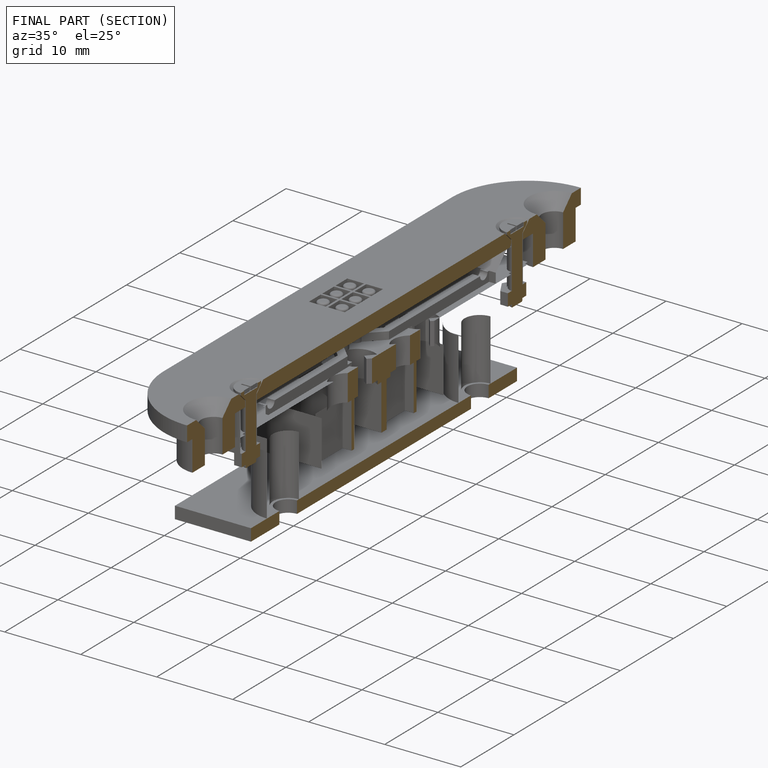
[diagram: finished part — half-section view (interior)]
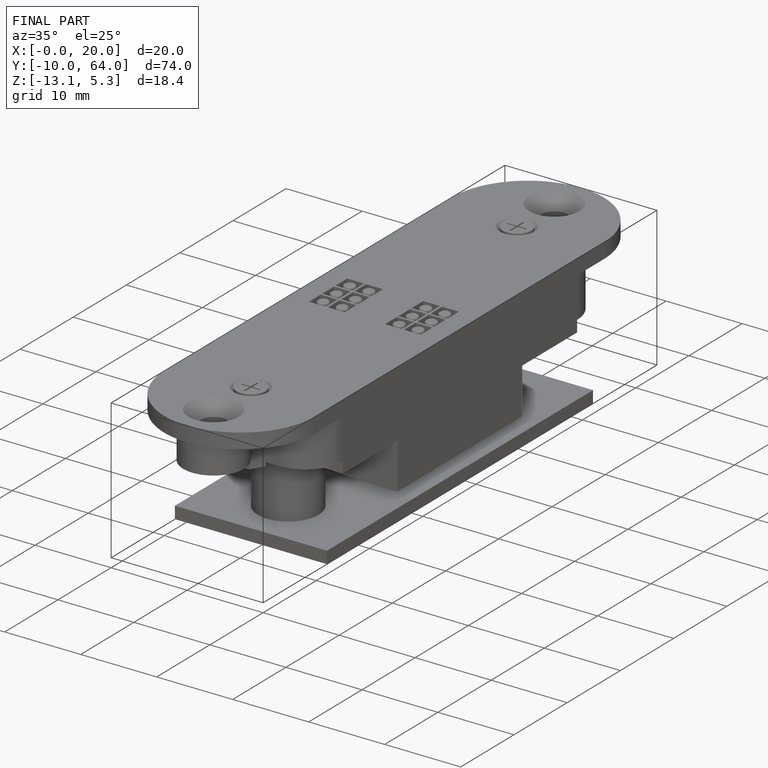
[diagram: finished part — iso view with bounding-box wireframe]
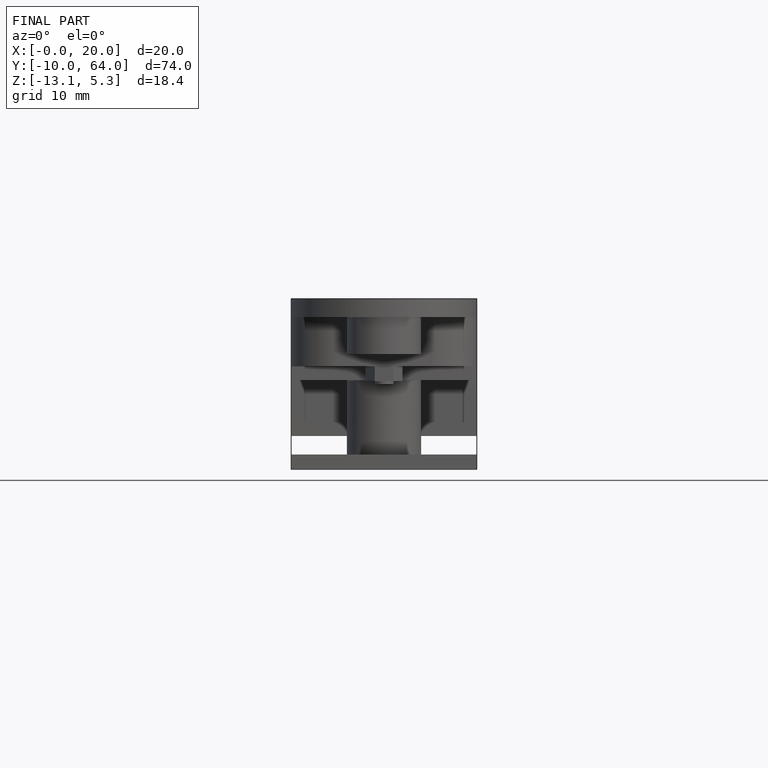
[diagram: finished part — front view with bounding-box wireframe]
